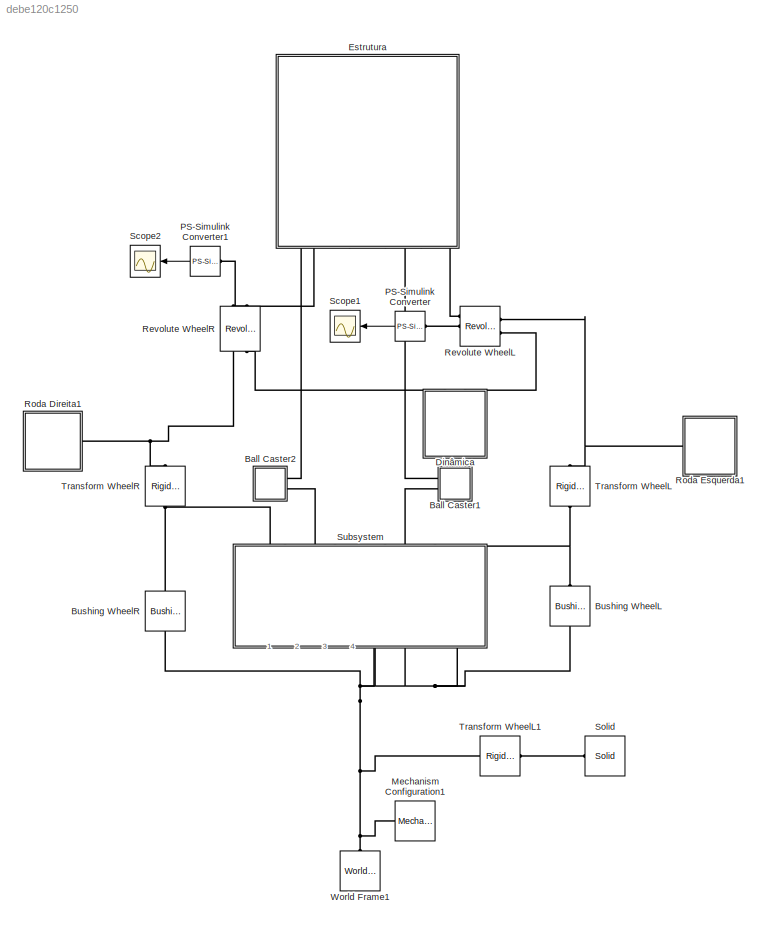
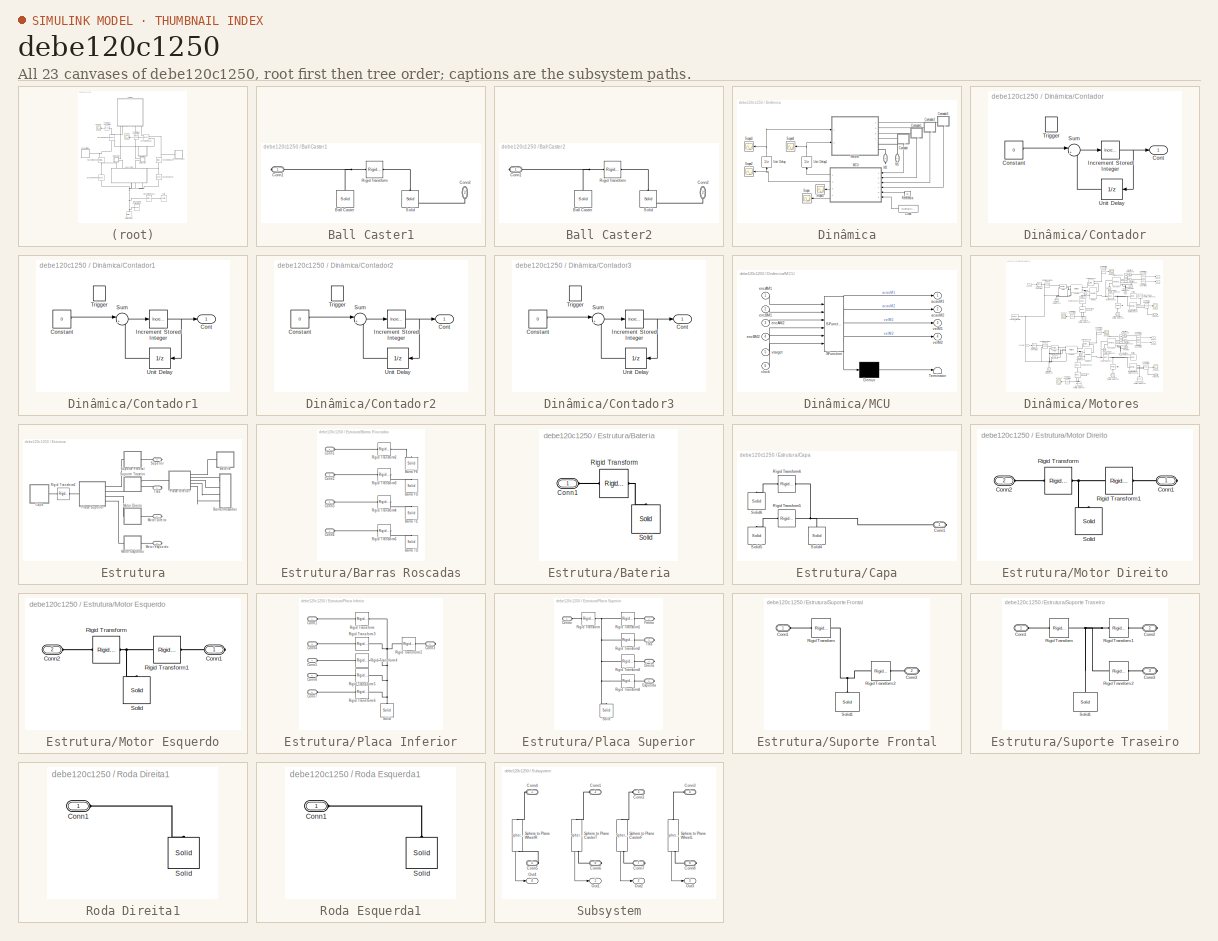
[diagram: thumbnail index - all 23 canvases of the model, root first then tree order]
MODEL slx_debe120c1250
KIND model
CONFIG AbsTol = 1e-5
CONFIG EnableMultiTasking = on
CONFIG FixedStep = 1e-3
CONFIG MaxStep = 0.1
CONFIG MinStep = auto
CONFIG RelTol = 1e-4
CONFIG SampleTimeConstraint = Unconstrained
CONFIG Solver = ode15s
CONFIG SolverName = ode15s
CONFIG StartFcn = tic;
CONFIG StartTime = 0.0
CONFIG StopFcn = Elapsed_Sim_Time = toc;\ndisp(['Elapsed Sim Time = ' num2str(Elapsed_Sim_Time)]);\n
CONFIG StopTime = 2
WORKSPACE source: MATLAB code (in-file)
WORKSPACE code: whl.rad = 0.025;
WORKSPACE code: whl.thickness = 0.005;
WORKSPACE code: axle.length = 0.2;
WORKSPACE code: axle.radius = 0.005;
WORKSPACE code: platform.radius = 0.15;
WORKSPACE code: platform.thickness = 0.005;
WORKSPACE code: platform.offset = -0.01;
WORKSPACE code: bumper.rad = platform.offset+whl.rad;
WORKSPACE code: table.length = 1;
WORKSPACE code: table.thickness = 0.01;
WORKSPACE code: tableWhl.contact.k = 1e3;
WORKSPACE code: tableWhl.contact.b = 1e2;
WORKSPACE code: steel.density = 8000; %kg/m^3
WORKSPACE code: start_pos.x = -0.2;
WORKSPACE code: start_pos.y = 0.2;
WORKSPACE l_whl_trq = [0 0 0 0.5 0 0 0 -0.5 1.0 0 0 0 -1.0 0.5 0 0 0 -0.5 -1.5 0 0 0 1.5].'*0.0005
WORKSPACE r_whl_trq = [0 0 0 2.0 0 0 0 -2.0 1.0 0 0 0 -1.0 1.0 0 0 0 -1.0 -1.5 0 0 0 1.5].'*0.0005
BLOCK [SubSystem] Ball Caster1
  Ports = [0, 0, 0, 0, 0, 0, 2]
  RequestExecContextInheritance = off
BLOCK [Reference] Ball Caster1/Ball Caster  REF=sm_lib/Body Elements/Solid
  Ports = [0, 0, 0, 0, 0, 0, 1]
  SourceBlock = sm_lib/Body Elements/Solid
  SourceProductBaseCode = MS
  SourceProductName = Simscape Multibody
  SourceType = Solid
BLOCK [PMIOPort] Ball Caster1/Conn1
  Side = Right
BLOCK [PMIOPort] Ball Caster1/Conn2
  Port = 2
  Side = Right
BLOCK [Reference] Ball Caster1/Rigid Transform  REF=sm_lib/Frames and
Transforms/Rigid
Transform
  Ports = [0, 0, 0, 0, 0, 1, 1]
  SourceBlock = sm_lib/Frames and\nTransforms/Rigid\nTransform
  SourceProductBaseCode = MS
  SourceProductName = Simscape Multibody
  SourceType = Rigid\nTransform
BLOCK [Reference] Ball Caster1/Solid  REF=sm_lib/Body Elements/Solid
  Ports = [0, 0, 0, 0, 0, 0, 1]
  SourceBlock = sm_lib/Body Elements/Solid
  SourceProductBaseCode = MS
  SourceProductName = Simscape Multibody
  SourceType = Solid
BLOCK [SubSystem] Ball Caster2
  Ports = [0, 0, 0, 0, 0, 0, 2]
  RequestExecContextInheritance = off
BLOCK [Reference] Ball Caster2/Ball Caster  REF=sm_lib/Body Elements/Solid
  Ports = [0, 0, 0, 0, 0, 0, 1]
  SourceBlock = sm_lib/Body Elements/Solid
  SourceProductBaseCode = MS
  SourceProductName = Simscape Multibody
  SourceType = Solid
BLOCK [PMIOPort] Ball Caster2/Conn1
  Side = Right
BLOCK [PMIOPort] Ball Caster2/Conn2
  Port = 2
  Side = Right
BLOCK [Reference] Ball Caster2/Rigid Transform  REF=sm_lib/Frames and
Transforms/Rigid
Transform
  Ports = [0, 0, 0, 0, 0, 1, 1]
  SourceBlock = sm_lib/Frames and\nTransforms/Rigid\nTransform
  SourceProductBaseCode = MS
  SourceProductName = Simscape Multibody
  SourceType = Rigid\nTransform
BLOCK [Reference] Ball Caster2/Solid  REF=sm_lib/Body Elements/Solid
  Ports = [0, 0, 0, 0, 0, 0, 1]
  SourceBlock = sm_lib/Body Elements/Solid
  SourceProductBaseCode = MS
  SourceProductName = Simscape Multibody
  SourceType = Solid
BLOCK [Reference] Bushing WheelL  REF=sm_lib/Joints/Bushing Joint
  Ports = [0, 0, 0, 0, 0, 1, 1]
  SourceBlock = sm_lib/Joints/Bushing Joint
  SourceProductBaseCode = MS
  SourceProductName = Simscape Multibody
  SourceType = Bushing Joint
BLOCK [Reference] Bushing WheelR  REF=sm_lib/Joints/Bushing Joint
  Ports = [0, 0, 0, 0, 0, 1, 1]
  SourceBlock = sm_lib/Joints/Bushing Joint
  SourceProductBaseCode = MS
  SourceProductName = Simscape Multibody
  SourceType = Bushing Joint
BLOCK [SubSystem] Dinâmica
  Ports = [0, 0, 0, 0, 0, 0, 2]
  RequestExecContextInheritance = off
BLOCK [DigitalClock] Dinâmica/Clock
  SampleTime = 1e-2
BLOCK [SubSystem] Dinâmica/Contador
  Ports = [0, 1, 0, 1]
  RequestExecContextInheritance = off
BLOCK [Constant] Dinâmica/Contador/Constant
  Value = 0
BLOCK [Outport] Dinâmica/Contador/Cont 
  IconDisplay = Port number
BLOCK [Reference] Dinâmica/Contador/Increment Stored Integer  REF=simulink/Additional Math
& Discrete/Additional Math:
Increment - Decrement/Increment
Stored Integer
  Ports = [1, 1]
  SourceBlock = simulink/Additional Math\n& Discrete/Additional Math:\nIncrement - Decrement/Increment\nStored Integer
  SourceProductBaseCode = SL
  SourceProductName = Simulink
  SourceType = Stored Integer Value Increment
BLOCK [Sum] Dinâmica/Contador/Sum
  IconShape = round
  InputSameDT = off
  Inputs = |++
  OutDataTypeStr = Inherit: Inherit via internal rule
  Ports = [2, 1]
  SaturateOnIntegerOverflow = off
BLOCK [TriggerPort] Dinâmica/Contador/Trigger
  PortDimensions = 1
  Ports = []
  StatesWhenEnabling = held
  TriggerType = either
  VariantControl = Variant
BLOCK [UnitDelay] Dinâmica/Contador/Unit Delay
  InputProcessing = Elements as channels (sample based)
  SampleTime = -1
BLOCK [SubSystem] Dinâmica/Contador1
  Ports = [0, 1, 0, 1]
  RequestExecContextInheritance = off
BLOCK [Constant] Dinâmica/Contador1/Constant
  Value = 0
BLOCK [Outport] Dinâmica/Contador1/Cont 
  IconDisplay = Port number
BLOCK [Reference] Dinâmica/Contador1/Increment Stored Integer  REF=simulink/Additional Math
& Discrete/Additional Math:
Increment - Decrement/Increment
Stored Integer
  Ports = [1, 1]
  SourceBlock = simulink/Additional Math\n& Discrete/Additional Math:\nIncrement - Decrement/Increment\nStored Integer
  SourceProductBaseCode = SL
  SourceProductName = Simulink
  SourceType = Stored Integer Value Increment
BLOCK [Sum] Dinâmica/Contador1/Sum
  IconShape = round
  InputSameDT = off
  Inputs = |++
  OutDataTypeStr = Inherit: Inherit via internal rule
  Ports = [2, 1]
  SaturateOnIntegerOverflow = off
BLOCK [TriggerPort] Dinâmica/Contador1/Trigger
  PortDimensions = 1
  Ports = []
  StatesWhenEnabling = held
  TriggerType = either
  VariantControl = Variant
BLOCK [UnitDelay] Dinâmica/Contador1/Unit Delay
  InputProcessing = Elements as channels (sample based)
  SampleTime = -1
BLOCK [SubSystem] Dinâmica/Contador2
  Ports = [0, 1, 0, 1]
  RequestExecContextInheritance = off
BLOCK [Constant] Dinâmica/Contador2/Constant
  Value = 0
BLOCK [Outport] Dinâmica/Contador2/Cont 
  IconDisplay = Port number
BLOCK [Reference] Dinâmica/Contador2/Increment Stored Integer  REF=simulink/Additional Math
& Discrete/Additional Math:
Increment - Decrement/Increment
Stored Integer
  Ports = [1, 1]
  SourceBlock = simulink/Additional Math\n& Discrete/Additional Math:\nIncrement - Decrement/Increment\nStored Integer
  SourceProductBaseCode = SL
  SourceProductName = Simulink
  SourceType = Stored Integer Value Increment
BLOCK [Sum] Dinâmica/Contador2/Sum
  IconShape = round
  InputSameDT = off
  Inputs = |++
  OutDataTypeStr = Inherit: Inherit via internal rule
  Ports = [2, 1]
  SaturateOnIntegerOverflow = off
BLOCK [TriggerPort] Dinâmica/Contador2/Trigger
  PortDimensions = 1
  Ports = []
  StatesWhenEnabling = held
  TriggerType = either
  VariantControl = Variant
BLOCK [UnitDelay] Dinâmica/Contador2/Unit Delay
  InputProcessing = Elements as channels (sample based)
  SampleTime = -1
BLOCK [SubSystem] Dinâmica/Contador3
  Ports = [0, 1, 0, 1]
  RequestExecContextInheritance = off
BLOCK [Constant] Dinâmica/Contador3/Constant
  Value = 0
BLOCK [Outport] Dinâmica/Contador3/Cont 
  IconDisplay = Port number
BLOCK [Reference] Dinâmica/Contador3/Increment Stored Integer  REF=simulink/Additional Math
& Discrete/Additional Math:
Increment - Decrement/Increment
Stored Integer
  Ports = [1, 1]
  SourceBlock = simulink/Additional Math\n& Discrete/Additional Math:\nIncrement - Decrement/Increment\nStored Integer
  SourceProductBaseCode = SL
  SourceProductName = Simulink
  SourceType = Stored Integer Value Increment
BLOCK [Sum] Dinâmica/Contador3/Sum
  IconShape = round
  InputSameDT = off
  Inputs = |++
  OutDataTypeStr = Inherit: Inherit via internal rule
  Ports = [2, 1]
  SaturateOnIntegerOverflow = off
BLOCK [TriggerPort] Dinâmica/Contador3/Trigger
  PortDimensions = 1
  Ports = []
  StatesWhenEnabling = held
  TriggerType = either
  VariantControl = Variant
BLOCK [UnitDelay] Dinâmica/Contador3/Unit Delay
  InputProcessing = Elements as channels (sample based)
  SampleTime = -1
BLOCK [PMIOPort] Dinâmica/M1
  Side = Right
BLOCK [PMIOPort] Dinâmica/M2
  Port = 2
  Side = Right
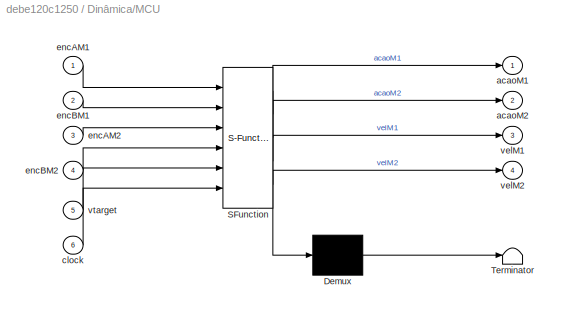
BLOCK [SubSystem] Dinâmica/MCU
  ErrorFcn = Stateflow.Translate.translate
  PermitHierarchicalResolution = ExplicitOnly
  Ports = [6, 4]
  RequestExecContextInheritance = off
  SFBlockType = MATLAB Function
  TreatAsAtomicUnit = on
BLOCK [Demux] Dinâmica/MCU/ Demux 
  Outputs = 1
  Ports = [1, 1]
BLOCK [S-Function] Dinâmica/MCU/ SFunction 
  EnableBusSupport = on
  FunctionName = sf_sfun
  PortCounts = [6 5]
  Ports = [6, 5]
  SFcnIsStateOwnerBlock = off
  SFunctionDeploymentMode = off
  Tag = Stateflow S-Function Sim_Integrada 2
BLOCK [Terminator] Dinâmica/MCU/ Terminator 
BLOCK [Outport] Dinâmica/MCU/acaoM1
  IconDisplay = Port number
BLOCK [Outport] Dinâmica/MCU/acaoM2
  IconDisplay = Port number
  Port = 2
BLOCK [Inport] Dinâmica/MCU/clock
  IconDisplay = Port number
  Port = 6
BLOCK [Inport] Dinâmica/MCU/encAM1
  IconDisplay = Port number
BLOCK [Inport] Dinâmica/MCU/encAM2
  IconDisplay = Port number
  Port = 3
BLOCK [Inport] Dinâmica/MCU/encBM1
  IconDisplay = Port number
  Port = 2
BLOCK [Inport] Dinâmica/MCU/encBM2
  IconDisplay = Port number
  Port = 4
BLOCK [Outport] Dinâmica/MCU/velM1
  IconDisplay = Port number
  Port = 3
BLOCK [Outport] Dinâmica/MCU/velM2
  IconDisplay = Port number
  Port = 4
BLOCK [Inport] Dinâmica/MCU/vtarget
  IconDisplay = Port number
  Port = 5
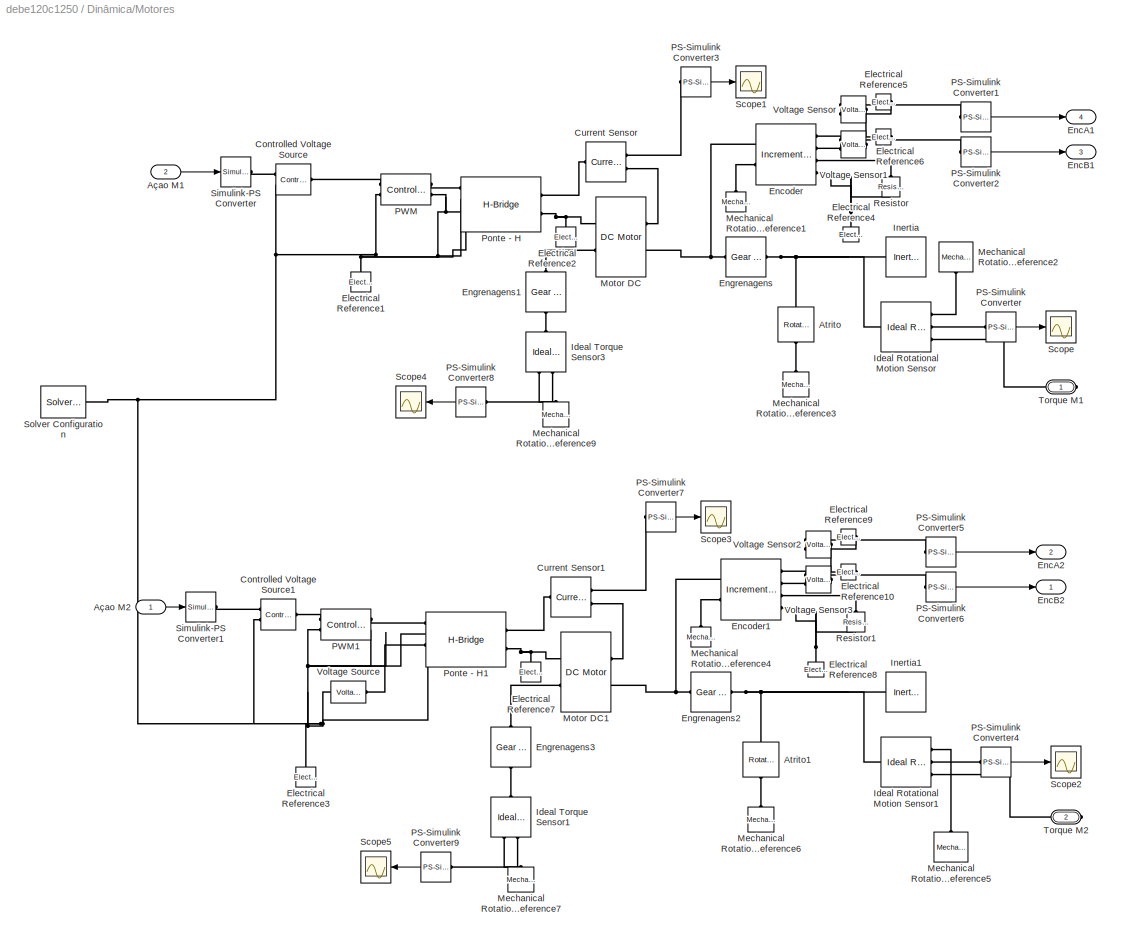
BLOCK [SubSystem] Dinâmica/Motores 
  Ports = [2, 4, 0, 0, 0, 0, 2]
  RequestExecContextInheritance = off
BLOCK [Reference] Dinâmica/Motores /Atrito  REF=fl_lib/Mechanical/Rotational Elements/Rotational Friction
  Ports = [0, 0, 0, 0, 0, 1, 1]
  SourceBlock = fl_lib/Mechanical/Rotational Elements/Rotational Friction
  SourceProductBaseCode = SS
  SourceProductName = Simscape
  SourceType = Rotational Friction
BLOCK [Reference] Dinâmica/Motores /Atrito1  REF=fl_lib/Mechanical/Rotational Elements/Rotational Friction
  Ports = [0, 0, 0, 0, 0, 1, 1]
  SourceBlock = fl_lib/Mechanical/Rotational Elements/Rotational Friction
  SourceProductBaseCode = SS
  SourceProductName = Simscape
  SourceType = Rotational Friction
BLOCK [Inport] Dinâmica/Motores /Açao M1
  IconDisplay = Port number
  Port = 2
BLOCK [Inport] Dinâmica/Motores /Açao M2
  IconDisplay = Port number
BLOCK [Reference] Dinâmica/Motores /Controlled Voltage Source  REF=fl_lib/Electrical/Electrical Sources/Controlled Voltage
Source
  Ports = [0, 0, 0, 0, 0, 1, 2]
  SourceBlock = fl_lib/Electrical/Electrical Sources/Controlled Voltage\nSource
  SourceProductBaseCode = SS
  SourceProductName = Simscape
  SourceType = Controlled Voltage\nSource
BLOCK [Reference] Dinâmica/Motores /Controlled Voltage Source1  REF=fl_lib/Electrical/Electrical Sources/Controlled Voltage
Source
  Ports = [0, 0, 0, 0, 0, 1, 2]
  SourceBlock = fl_lib/Electrical/Electrical Sources/Controlled Voltage\nSource
  SourceProductBaseCode = SS
  SourceProductName = Simscape
  SourceType = Controlled Voltage\nSource
BLOCK [Reference] Dinâmica/Motores /Current Sensor  REF=fl_lib/Electrical/Electrical Sensors/Current Sensor
  Ports = [0, 0, 0, 0, 0, 1, 2]
  SourceBlock = fl_lib/Electrical/Electrical Sensors/Current Sensor
  SourceProductBaseCode = SS
  SourceProductName = Simscape
  SourceType = Current Sensor
BLOCK [Reference] Dinâmica/Motores /Current Sensor1  REF=fl_lib/Electrical/Electrical Sensors/Current Sensor
  Ports = [0, 0, 0, 0, 0, 1, 2]
  SourceBlock = fl_lib/Electrical/Electrical Sensors/Current Sensor
  SourceProductBaseCode = SS
  SourceProductName = Simscape
  SourceType = Current Sensor
BLOCK [Reference] Dinâmica/Motores /Electrical Reference1  REF=fl_lib/Electrical/Electrical Elements/Electrical Reference
  Ports = [0, 0, 0, 0, 0, 1]
  SourceBlock = fl_lib/Electrical/Electrical Elements/Electrical Reference
  SourceProductBaseCode = SS
  SourceProductName = Simscape
  SourceType = Electrical Reference
BLOCK [Reference] Dinâmica/Motores /Electrical Reference10  REF=fl_lib/Electrical/Electrical Elements/Electrical Reference
  Ports = [0, 0, 0, 0, 0, 1]
  SourceBlock = fl_lib/Electrical/Electrical Elements/Electrical Reference
  SourceProductBaseCode = SS
  SourceProductName = Simscape
  SourceType = Electrical Reference
BLOCK [Reference] Dinâmica/Motores /Electrical Reference2  REF=fl_lib/Electrical/Electrical Elements/Electrical Reference
  Ports = [0, 0, 0, 0, 0, 1]
  SourceBlock = fl_lib/Electrical/Electrical Elements/Electrical Reference
  SourceProductBaseCode = SS
  SourceProductName = Simscape
  SourceType = Electrical Reference
BLOCK [Reference] Dinâmica/Motores /Electrical Reference3  REF=fl_lib/Electrical/Electrical Elements/Electrical Reference
  Ports = [0, 0, 0, 0, 0, 1]
  SourceBlock = fl_lib/Electrical/Electrical Elements/Electrical Reference
  SourceProductBaseCode = SS
  SourceProductName = Simscape
  SourceType = Electrical Reference
BLOCK [Reference] Dinâmica/Motores /Electrical Reference4  REF=fl_lib/Electrical/Electrical Elements/Electrical Reference
  Ports = [0, 0, 0, 0, 0, 1]
  SourceBlock = fl_lib/Electrical/Electrical Elements/Electrical Reference
  SourceProductBaseCode = SS
  SourceProductName = Simscape
  SourceType = Electrical Reference
BLOCK [Reference] Dinâmica/Motores /Electrical Reference5  REF=fl_lib/Electrical/Electrical Elements/Electrical Reference
  Ports = [0, 0, 0, 0, 0, 1]
  SourceBlock = fl_lib/Electrical/Electrical Elements/Electrical Reference
  SourceProductBaseCode = SS
  SourceProductName = Simscape
  SourceType = Electrical Reference
BLOCK [Reference] Dinâmica/Motores /Electrical Reference6  REF=fl_lib/Electrical/Electrical Elements/Electrical Reference
  Ports = [0, 0, 0, 0, 0, 1]
  SourceBlock = fl_lib/Electrical/Electrical Elements/Electrical Reference
  SourceProductBaseCode = SS
  SourceProductName = Simscape
  SourceType = Electrical Reference
BLOCK [Reference] Dinâmica/Motores /Electrical Reference7  REF=fl_lib/Electrical/Electrical Elements/Electrical Reference
  Ports = [0, 0, 0, 0, 0, 1]
  SourceBlock = fl_lib/Electrical/Electrical Elements/Electrical Reference
  SourceProductBaseCode = SS
  SourceProductName = Simscape
  SourceType = Electrical Reference
BLOCK [Reference] Dinâmica/Motores /Electrical Reference8  REF=fl_lib/Electrical/Electrical Elements/Electrical Reference
  Ports = [0, 0, 0, 0, 0, 1]
  SourceBlock = fl_lib/Electrical/Electrical Elements/Electrical Reference
  SourceProductBaseCode = SS
  SourceProductName = Simscape
  SourceType = Electrical Reference
BLOCK [Reference] Dinâmica/Motores /Electrical Reference9  REF=fl_lib/Electrical/Electrical Elements/Electrical Reference
  Ports = [0, 0, 0, 0, 0, 1]
  SourceBlock = fl_lib/Electrical/Electrical Elements/Electrical Reference
  SourceProductBaseCode = SS
  SourceProductName = Simscape
  SourceType = Electrical Reference
BLOCK [Outport] Dinâmica/Motores /EncA1
  IconDisplay = Port number
  Port = 4
BLOCK [Outport] Dinâmica/Motores /EncA2
  IconDisplay = Port number
  Port = 2
BLOCK [Outport] Dinâmica/Motores /EncB1
  IconDisplay = Port number
  Port = 3
BLOCK [Outport] Dinâmica/Motores /EncB2
  IconDisplay = Port number
BLOCK [Reference] Dinâmica/Motores /Encoder  REF=elec_lib/Sensors/Incremental Shaft
Encoder
  Ports = [0, 0, 0, 0, 0, 2, 4]
  SourceBlock = elec_lib/Sensors/Incremental Shaft\nEncoder
  SourceProductBaseCode = SN
  SourceProductName = Simscape Electronics
  SourceType = Incremental Shaft\nEncoder
BLOCK [Reference] Dinâmica/Motores /Encoder1  REF=elec_lib/Sensors/Incremental Shaft
Encoder
  Ports = [0, 0, 0, 0, 0, 2, 4]
  SourceBlock = elec_lib/Sensors/Incremental Shaft\nEncoder
  SourceProductBaseCode = SN
  SourceProductName = Simscape Electronics
  SourceType = Incremental Shaft\nEncoder
BLOCK [Reference] Dinâmica/Motores /Engrenagens  REF=fl_lib/Mechanical/Mechanisms/Gear Box
  Ports = [0, 0, 0, 0, 0, 1, 1]
  SourceBlock = fl_lib/Mechanical/Mechanisms/Gear Box
  SourceProductBaseCode = SS
  SourceProductName = Simscape
  SourceType = Gear Box
BLOCK [Reference] Dinâmica/Motores /Engrenagens1  REF=fl_lib/Mechanical/Mechanisms/Gear Box
  Ports = [0, 0, 0, 0, 0, 1, 1]
  SourceBlock = fl_lib/Mechanical/Mechanisms/Gear Box
  SourceProductBaseCode = SS
  SourceProductName = Simscape
  SourceType = Gear Box
BLOCK [Reference] Dinâmica/Motores /Engrenagens2  REF=fl_lib/Mechanical/Mechanisms/Gear Box
  Ports = [0, 0, 0, 0, 0, 1, 1]
  SourceBlock = fl_lib/Mechanical/Mechanisms/Gear Box
  SourceProductBaseCode = SS
  SourceProductName = Simscape
  SourceType = Gear Box
BLOCK [Reference] Dinâmica/Motores /Engrenagens3  REF=fl_lib/Mechanical/Mechanisms/Gear Box
  Ports = [0, 0, 0, 0, 0, 1, 1]
  SourceBlock = fl_lib/Mechanical/Mechanisms/Gear Box
  SourceProductBaseCode = SS
  SourceProductName = Simscape
  SourceType = Gear Box
BLOCK [Reference] Dinâmica/Motores /Ideal Rotational Motion Sensor  REF=fl_lib/Mechanical/Mechanical Sensors/Ideal Rotational
Motion Sensor
  Ports = [0, 0, 0, 0, 0, 1, 3]
  SourceBlock = fl_lib/Mechanical/Mechanical Sensors/Ideal Rotational\nMotion Sensor
  SourceProductBaseCode = SS
  SourceProductName = Simscape
  SourceType = Ideal Rotational\nMotion Sensor
BLOCK [Reference] Dinâmica/Motores /Ideal Rotational Motion Sensor1  REF=fl_lib/Mechanical/Mechanical Sensors/Ideal Rotational
Motion Sensor
  Ports = [0, 0, 0, 0, 0, 1, 3]
  SourceBlock = fl_lib/Mechanical/Mechanical Sensors/Ideal Rotational\nMotion Sensor
  SourceProductBaseCode = SS
  SourceProductName = Simscape
  SourceType = Ideal Rotational\nMotion Sensor
BLOCK [Reference] Dinâmica/Motores /Ideal Torque Sensor1  REF=fl_lib/Mechanical/Mechanical Sensors/Ideal Torque Sensor
  Ports = [0, 0, 0, 0, 0, 1, 2]
  SourceBlock = fl_lib/Mechanical/Mechanical Sensors/Ideal Torque Sensor
  SourceProductBaseCode = SS
  SourceProductName = Simscape
  SourceType = Ideal Torque Sensor
BLOCK [Reference] Dinâmica/Motores /Ideal Torque Sensor3  REF=fl_lib/Mechanical/Mechanical Sensors/Ideal Torque Sensor
  Ports = [0, 0, 0, 0, 0, 1, 2]
  SourceBlock = fl_lib/Mechanical/Mechanical Sensors/Ideal Torque Sensor
  SourceProductBaseCode = SS
  SourceProductName = Simscape
  SourceType = Ideal Torque Sensor
BLOCK [Reference] Dinâmica/Motores /Inertia  REF=fl_lib/Mechanical/Rotational Elements/Inertia
  Ports = [0, 0, 0, 0, 0, 1]
  SourceBlock = fl_lib/Mechanical/Rotational Elements/Inertia
  SourceProductBaseCode = SS
  SourceProductName = Simscape
  SourceType = Inertia
BLOCK [Reference] Dinâmica/Motores /Inertia1  REF=fl_lib/Mechanical/Rotational Elements/Inertia
  Ports = [0, 0, 0, 0, 0, 1]
  SourceBlock = fl_lib/Mechanical/Rotational Elements/Inertia
  SourceProductBaseCode = SS
  SourceProductName = Simscape
  SourceType = Inertia
BLOCK [Reference] Dinâmica/Motores /Mechanical Rotational Reference1  REF=fl_lib/Mechanical/Rotational Elements/Mechanical
Rotational Reference
  Ports = [0, 0, 0, 0, 0, 1]
  SourceBlock = fl_lib/Mechanical/Rotational Elements/Mechanical\nRotational Reference
  SourceProductBaseCode = SS
  SourceProductName = Simscape
  SourceType = Mechanical\nRotational Reference
BLOCK [Reference] Dinâmica/Motores /Mechanical Rotational Reference2  REF=fl_lib/Mechanical/Rotational Elements/Mechanical
Rotational Reference
  Ports = [0, 0, 0, 0, 0, 1]
  SourceBlock = fl_lib/Mechanical/Rotational Elements/Mechanical\nRotational Reference
  SourceProductBaseCode = SS
  SourceProductName = Simscape
  SourceType = Mechanical\nRotational Reference
BLOCK [Reference] Dinâmica/Motores /Mechanical Rotational Reference3  REF=fl_lib/Mechanical/Rotational Elements/Mechanical
Rotational Reference
  Ports = [0, 0, 0, 0, 0, 1]
  SourceBlock = fl_lib/Mechanical/Rotational Elements/Mechanical\nRotational Reference
  SourceProductBaseCode = SS
  SourceProductName = Simscape
  SourceType = Mechanical\nRotational Reference
BLOCK [Reference] Dinâmica/Motores /Mechanical Rotational Reference4  REF=fl_lib/Mechanical/Rotational Elements/Mechanical
Rotational Reference
  Ports = [0, 0, 0, 0, 0, 1]
  SourceBlock = fl_lib/Mechanical/Rotational Elements/Mechanical\nRotational Reference
  SourceProductBaseCode = SS
  SourceProductName = Simscape
  SourceType = Mechanical\nRotational Reference
BLOCK [Reference] Dinâmica/Motores /Mechanical Rotational Reference5  REF=fl_lib/Mechanical/Rotational Elements/Mechanical
Rotational Reference
  Ports = [0, 0, 0, 0, 0, 1]
  SourceBlock = fl_lib/Mechanical/Rotational Elements/Mechanical\nRotational Reference
  SourceProductBaseCode = SS
  SourceProductName = Simscape
  SourceType = Mechanical\nRotational Reference
BLOCK [Reference] Dinâmica/Motores /Mechanical Rotational Reference6  REF=fl_lib/Mechanical/Rotational Elements/Mechanical
Rotational Reference
  Ports = [0, 0, 0, 0, 0, 1]
  SourceBlock = fl_lib/Mechanical/Rotational Elements/Mechanical\nRotational Reference
  SourceProductBaseCode = SS
  SourceProductName = Simscape
  SourceType = Mechanical\nRotational Reference
BLOCK [Reference] Dinâmica/Motores /Mechanical Rotational Reference7  REF=fl_lib/Mechanical/Rotational Elements/Mechanical
Rotational Reference
  Ports = [0, 0, 0, 0, 0, 1]
  SourceBlock = fl_lib/Mechanical/Rotational Elements/Mechanical\nRotational Reference
  SourceProductBaseCode = SS
  SourceProductName = Simscape
  SourceType = Mechanical\nRotational Reference
BLOCK [Reference] Dinâmica/Motores /Mechanical Rotational Reference9  REF=fl_lib/Mechanical/Rotational Elements/Mechanical
Rotational Reference
  Ports = [0, 0, 0, 0, 0, 1]
  SourceBlock = fl_lib/Mechanical/Rotational Elements/Mechanical\nRotational Reference
  SourceProductBaseCode = SS
  SourceProductName = Simscape
  SourceType = Mechanical\nRotational Reference
BLOCK [Reference] Dinâmica/Motores /Motor DC  REF=elec_lib/Actuators & Drivers/Rotational Actuators/DC Motor
  Ports = [0, 0, 0, 0, 0, 2, 2]
  SourceBlock = elec_lib/Actuators & Drivers/Rotational Actuators/DC Motor
  SourceProductBaseCode = SN
  SourceProductName = Simscape Electronics
  SourceType = DC Motor
BLOCK [Reference] Dinâmica/Motores /Motor DC1  REF=elec_lib/Actuators & Drivers/Rotational Actuators/DC Motor
  Ports = [0, 0, 0, 0, 0, 2, 2]
  SourceBlock = elec_lib/Actuators & Drivers/Rotational Actuators/DC Motor
  SourceProductBaseCode = SN
  SourceProductName = Simscape Electronics
  SourceType = DC Motor
BLOCK [Reference] Dinâmica/Motores /PS-Simulink Converter  REF=nesl_utility/PS-Simulink
Converter
  Ports = [0, 1, 0, 0, 0, 1]
  SourceBlock = nesl_utility/PS-Simulink\nConverter
  SourceProductBaseCode = SS
  SourceProductName = Simscape
  SourceType = PS-Simulink\nConverter
BLOCK [Reference] Dinâmica/Motores /PS-Simulink Converter1  REF=nesl_utility/PS-Simulink
Converter
  Ports = [0, 1, 0, 0, 0, 1]
  SourceBlock = nesl_utility/PS-Simulink\nConverter
  SourceProductBaseCode = SS
  SourceProductName = Simscape
  SourceType = PS-Simulink\nConverter
BLOCK [Reference] Dinâmica/Motores /PS-Simulink Converter2  REF=nesl_utility/PS-Simulink
Converter
  Ports = [0, 1, 0, 0, 0, 1]
  SourceBlock = nesl_utility/PS-Simulink\nConverter
  SourceProductBaseCode = SS
  SourceProductName = Simscape
  SourceType = PS-Simulink\nConverter
BLOCK [Reference] Dinâmica/Motores /PS-Simulink Converter3  REF=nesl_utility/PS-Simulink
Converter
  Ports = [0, 1, 0, 0, 0, 1]
  SourceBlock = nesl_utility/PS-Simulink\nConverter
  SourceProductBaseCode = SS
  SourceProductName = Simscape
  SourceType = PS-Simulink\nConverter
BLOCK [Reference] Dinâmica/Motores /PS-Simulink Converter4  REF=nesl_utility/PS-Simulink
Converter
  Ports = [0, 1, 0, 0, 0, 1]
  SourceBlock = nesl_utility/PS-Simulink\nConverter
  SourceProductBaseCode = SS
  SourceProductName = Simscape
  SourceType = PS-Simulink\nConverter
BLOCK [Reference] Dinâmica/Motores /PS-Simulink Converter5  REF=nesl_utility/PS-Simulink
Converter
  Ports = [0, 1, 0, 0, 0, 1]
  SourceBlock = nesl_utility/PS-Simulink\nConverter
  SourceProductBaseCode = SS
  SourceProductName = Simscape
  SourceType = PS-Simulink\nConverter
BLOCK [Reference] Dinâmica/Motores /PS-Simulink Converter6  REF=nesl_utility/PS-Simulink
Converter
  Ports = [0, 1, 0, 0, 0, 1]
  SourceBlock = nesl_utility/PS-Simulink\nConverter
  SourceProductBaseCode = SS
  SourceProductName = Simscape
  SourceType = PS-Simulink\nConverter
BLOCK [Reference] Dinâmica/Motores /PS-Simulink Converter7  REF=nesl_utility/PS-Simulink
Converter
  Ports = [0, 1, 0, 0, 0, 1]
  SourceBlock = nesl_utility/PS-Simulink\nConverter
  SourceProductBaseCode = SS
  SourceProductName = Simscape
  SourceType = PS-Simulink\nConverter
BLOCK [Reference] Dinâmica/Motores /PS-Simulink Converter8  REF=nesl_utility/PS-Simulink
Converter
  Ports = [0, 1, 0, 0, 0, 1]
  SourceBlock = nesl_utility/PS-Simulink\nConverter
  SourceProductBaseCode = SS
  SourceProductName = Simscape
  SourceType = PS-Simulink\nConverter
BLOCK [Reference] Dinâmica/Motores /PS-Simulink Converter9  REF=nesl_utility/PS-Simulink
Converter
  Ports = [0, 1, 0, 0, 0, 1]
  SourceBlock = nesl_utility/PS-Simulink\nConverter
  SourceProductBaseCode = SS
  SourceProductName = Simscape
  SourceType = PS-Simulink\nConverter
BLOCK [Reference] Dinâmica/Motores /PWM  REF=elec_lib/Actuators & Drivers/Drivers/Controlled PWM
Voltage
  Ports = [0, 0, 0, 0, 0, 2, 2]
  SourceBlock = elec_lib/Actuators & Drivers/Drivers/Controlled PWM\nVoltage
  SourceProductBaseCode = SN
  SourceProductName = Simscape Electronics
  SourceType = Controlled PWM\nVoltage
BLOCK [Reference] Dinâmica/Motores /PWM1  REF=elec_lib/Actuators & Drivers/Drivers/Controlled PWM
Voltage
  Ports = [0, 0, 0, 0, 0, 2, 2]
  SourceBlock = elec_lib/Actuators & Drivers/Drivers/Controlled PWM\nVoltage
  SourceProductBaseCode = SN
  SourceProductName = Simscape Electronics
  SourceType = Controlled PWM\nVoltage
BLOCK [Reference] Dinâmica/Motores /Ponte - H  REF=elec_lib/Actuators & Drivers/Drivers/H-Bridge
  Ports = [0, 0, 0, 0, 0, 4, 2]
  SourceBlock = elec_lib/Actuators & Drivers/Drivers/H-Bridge
  SourceProductBaseCode = SN
  SourceProductName = Simscape Electronics
  SourceType = H-Bridge
BLOCK [Reference] Dinâmica/Motores /Ponte - H1  REF=elec_lib/Actuators & Drivers/Drivers/H-Bridge
  Ports = [0, 0, 0, 0, 0, 4, 2]
  SourceBlock = elec_lib/Actuators & Drivers/Drivers/H-Bridge
  SourceProductBaseCode = SN
  SourceProductName = Simscape Electronics
  SourceType = H-Bridge
BLOCK [Reference] Dinâmica/Motores /Resistor  REF=elec_lib/Passive Devices/Resistor
  Ports = [0, 0, 0, 0, 0, 1, 1]
  SourceBlock = elec_lib/Passive Devices/Resistor
  SourceProductBaseCode = SN
  SourceProductName = Simscape Electronics
  SourceType = Resistor
BLOCK [Reference] Dinâmica/Motores /Resistor1  REF=elec_lib/Passive Devices/Resistor
  Ports = [0, 0, 0, 0, 0, 1, 1]
  SourceBlock = elec_lib/Passive Devices/Resistor
  SourceProductBaseCode = SN
  SourceProductName = Simscape Electronics
  SourceType = Resistor
BLOCK [Scope] Dinâmica/Motores /Scope
  Floating = off
  NumInputPorts = 1
  Ports = [1]
  ScopeSpecificationString = Simulink.scopes.TimeScopeBlockCfg('CurrentConfiguration', extmgr.ConfigurationSet(extmgr.Configuration('Core','General UI',true),extmgr.Configuration('Core','Source UI',true),extmgr.Configuration('Sources','WiredSimulink',true,'DataLoggingVariableName','ScopeData1'),extmgr.Configuration('Visuals','Time Domain',true,'SerializedDisplays',{struct('MinYLimReal','-3.87884','MaxYLimReal','34.90953','YLa...<+1412ch>
BLOCK [Scope] Dinâmica/Motores /Scope1
  Floating = off
  NumInputPorts = 1
  Ports = [1]
  ScopeSpecificationString = Simulink.scopes.TimeScopeBlockCfg('CurrentConfiguration', extmgr.ConfigurationSet(extmgr.Configuration('Core','General UI',true),extmgr.Configuration('Core','Source UI',true),extmgr.Configuration('Sources','WiredSimulink',true,'DataLoggingSaveFormat','Array','DataLoggingDecimation','1','DataLoggingVariableName','ScopeData2'),extmgr.Configuration('Visuals','Time Domain',true,'SerializedDisplays',{s...<+1690ch>
BLOCK [Scope] Dinâmica/Motores /Scope2
  Floating = off
  NumInputPorts = 1
  Ports = [1]
  ScopeSpecificationString = Simulink.scopes.TimeScopeBlockCfg('CurrentConfiguration', extmgr.ConfigurationSet(extmgr.Configuration('Core','General UI',true),extmgr.Configuration('Core','Source UI',true),extmgr.Configuration('Sources','WiredSimulink',true,'DataLoggingVariableName','ScopeData4'),extmgr.Configuration('Visuals','Time Domain',true,'SerializedDisplays',{struct('MinYLimReal','-4.50172','MaxYLimReal','40.5155','YLab...<+1408ch>
BLOCK [Scope] Dinâmica/Motores /Scope3
  Floating = off
  NumInputPorts = 1
  Ports = [1]
  ScopeSpecificationString = Simulink.scopes.TimeScopeBlockCfg('CurrentConfiguration', extmgr.ConfigurationSet(extmgr.Configuration('Core','General UI',true),extmgr.Configuration('Core','Source UI',true),extmgr.Configuration('Sources','WiredSimulink',true,'DataLoggingSaveFormat','Array','DataLoggingDecimation','1','DataLoggingVariableName','ScopeData5'),extmgr.Configuration('Visuals','Time Domain',true,'SerializedDisplays',{s...<+1690ch>
BLOCK [Scope] Dinâmica/Motores /Scope4
  Floating = off
  NumInputPorts = 1
  Ports = [1]
  ScopeSpecificationString = Simulink.scopes.TimeScopeBlockCfg('CurrentConfiguration', extmgr.ConfigurationSet(extmgr.Configuration('Core','General UI',true),extmgr.Configuration('Core','Source UI',true),extmgr.Configuration('Sources','WiredSimulink',true,'DataLoggingVariableName','ScopeData3'),extmgr.Configuration('Visuals','Time Domain',true,'SerializedDisplays',{struct('MinYLimReal','-0.05029','MaxYLimReal','0.00559','YLab...<+1454ch>
BLOCK [Scope] Dinâmica/Motores /Scope5
  Floating = off
  NumInputPorts = 1
  Ports = [1]
  ScopeSpecificationString = Simulink.scopes.TimeScopeBlockCfg('CurrentConfiguration', extmgr.ConfigurationSet(extmgr.Configuration('Core','General UI',true),extmgr.Configuration('Core','Source UI',true),extmgr.Configuration('Sources','WiredSimulink',true,'DataLoggingVariableName','ScopeData6'),extmgr.Configuration('Visuals','Time Domain',true,'SerializedDisplays',{struct('MinYLimReal','-0.05029','MaxYLimReal','0.00559','YLab...<+1454ch>
BLOCK [Reference] Dinâmica/Motores /Simulink-PS Converter  REF=nesl_utility/Simulink-PS
Converter
  Ports = [1, 0, 0, 0, 0, 0, 1]
  SourceBlock = nesl_utility/Simulink-PS\nConverter
  SourceProductBaseCode = SS
  SourceProductName = Simscape
  SourceType = Simulink-PS\nConverter
BLOCK [Reference] Dinâmica/Motores /Simulink-PS Converter1  REF=nesl_utility/Simulink-PS
Converter
  Ports = [1, 0, 0, 0, 0, 0, 1]
  SourceBlock = nesl_utility/Simulink-PS\nConverter
  SourceProductBaseCode = SS
  SourceProductName = Simscape
  SourceType = Simulink-PS\nConverter
BLOCK [Reference] Dinâmica/Motores /Solver Configuration  REF=nesl_utility/Solver
Configuration
  Ports = [0, 0, 0, 0, 0, 0, 1]
  SourceBlock = nesl_utility/Solver\nConfiguration
  SourceProductBaseCode = SS
  SourceProductName = Simscape
  SourceType = Solver\nConfiguration
BLOCK [PMIOPort] Dinâmica/Motores /Torque M1
  Side = Right
BLOCK [PMIOPort] Dinâmica/Motores /Torque M2
  Port = 2
  Side = Right
BLOCK [Reference] Dinâmica/Motores /Voltage Sensor  REF=fl_lib/Electrical/Electrical Sensors/Voltage Sensor
  Ports = [0, 0, 0, 0, 0, 1, 2]
  SourceBlock = fl_lib/Electrical/Electrical Sensors/Voltage Sensor
  SourceProductBaseCode = SS
  SourceProductName = Simscape
  SourceType = Voltage Sensor
BLOCK [Reference] Dinâmica/Motores /Voltage Sensor1  REF=fl_lib/Electrical/Electrical Sensors/Voltage Sensor
  Ports = [0, 0, 0, 0, 0, 1, 2]
  SourceBlock = fl_lib/Electrical/Electrical Sensors/Voltage Sensor
  SourceProductBaseCode = SS
  SourceProductName = Simscape
  SourceType = Voltage Sensor
BLOCK [Reference] Dinâmica/Motores /Voltage Sensor2  REF=fl_lib/Electrical/Electrical Sensors/Voltage Sensor
  Ports = [0, 0, 0, 0, 0, 1, 2]
  SourceBlock = fl_lib/Electrical/Electrical Sensors/Voltage Sensor
  SourceProductBaseCode = SS
  SourceProductName = Simscape
  SourceType = Voltage Sensor
BLOCK [Reference] Dinâmica/Motores /Voltage Sensor3  REF=fl_lib/Electrical/Electrical Sensors/Voltage Sensor
  Ports = [0, 0, 0, 0, 0, 1, 2]
  SourceBlock = fl_lib/Electrical/Electrical Sensors/Voltage Sensor
  SourceProductBaseCode = SS
  SourceProductName = Simscape
  SourceType = Voltage Sensor
BLOCK [Reference] Dinâmica/Motores /Voltage Source  REF=elec_lib/Sources/Voltage Source
  Ports = [0, 0, 0, 0, 0, 1, 1]
  SourceBlock = elec_lib/Sources/Voltage Source
  SourceProductBaseCode = SN
  SourceProductName = Simscape Electronics
  SourceType = Voltage Source
BLOCK [Constant] Dinâmica/Referência
  Value = 26
BLOCK [Scope] Dinâmica/Scope
  Floating = off
  NumInputPorts = 1
  Ports = [1]
  ScopeSpecificationString = Simulink.scopes.TimeScopeBlockCfg('CurrentConfiguration', extmgr.ConfigurationSet(extmgr.Configuration('Core','General UI',true),extmgr.Configuration('Core','Source UI',true),extmgr.Configuration('Sources','WiredSimulink',true,'DataLoggingVariableName','ScopeData1'),extmgr.Configuration('Visuals','Time Domain',true,'SerializedDisplays',{struct('MinYLimReal','-3.86154','MaxYLimReal','34.75387','YLa...<+1471ch>
BLOCK [Scope] Dinâmica/Scope1
  Floating = off
  NumInputPorts = 1
  Ports = [1]
  ScopeSpecificationString = Simulink.scopes.TimeScopeBlockCfg('CurrentConfiguration', extmgr.ConfigurationSet(extmgr.Configuration('Core','General UI',true),extmgr.Configuration('Core','Source UI',true),extmgr.Configuration('Sources','WiredSimulink',true,'DataLoggingVariableName','ScopeData2'),extmgr.Configuration('Visuals','Time Domain',true,'SerializedDisplays',{struct('MinYLimReal','-3.63247','MaxYLimReal','32.6922','YLab...<+1417ch>
BLOCK [Scope] Dinâmica/Scope2
  Floating = off
  NumInputPorts = 1
  Ports = [1]
  ScopeSpecificationString = Simulink.scopes.TimeScopeBlockCfg('CurrentConfiguration', extmgr.ConfigurationSet(extmgr.Configuration('Core','General UI',true),extmgr.Configuration('Core','Source UI',true),extmgr.Configuration('Sources','WiredSimulink',true,'DataLoggingVariableName','ScopeData3'),extmgr.Configuration('Visuals','Time Domain',true,'SerializedDisplays',{struct('MinYLimReal','-400.00000','MaxYLimReal','3600.00000',...<+1387ch>
BLOCK [Scope] Dinâmica/Scope3
  Floating = off
  NumInputPorts = 1
  Ports = [1]
  ScopeSpecificationString = Simulink.scopes.TimeScopeBlockCfg('CurrentConfiguration', extmgr.ConfigurationSet(extmgr.Configuration('Core','General UI',true),extmgr.Configuration('Core','Source UI',true),extmgr.Configuration('Sources','WiredSimulink',true,'DataLoggingVariableName','ScopeData4'),extmgr.Configuration('Visuals','Time Domain',true,'SerializedDisplays',{struct('MinYLimReal','-400.00000','MaxYLimReal','3600.00000',...<+1387ch>
BLOCK [Scope] Dinâmica/Scope4
  Floating = off
  NumInputPorts = 1
  Ports = [1]
  ScopeSpecificationString = Simulink.scopes.TimeScopeBlockCfg('CurrentConfiguration', extmgr.ConfigurationSet(extmgr.Configuration('Core','General UI',true),extmgr.Configuration('Core','Source UI',true),extmgr.Configuration('Sources','WiredSimulink',true,'DataLoggingVariableName','ScopeData5'),extmgr.Configuration('Visuals','Time Domain',true,'SerializedDisplays',{struct('MinYLimReal','-400.00000','MaxYLimReal','3600.00000',...<+1434ch>
BLOCK [UnitDelay] Dinâmica/Unit Delay
  InputProcessing = Elements as channels (sample based)
  SampleTime = -1
BLOCK [UnitDelay] Dinâmica/Unit Delay1
  InputProcessing = Elements as channels (sample based)
  SampleTime = -1
BLOCK [SubSystem] Estrutura
  Ports = [0, 0, 0, 0, 0, 0, 4]
  RequestExecContextInheritance = off
BLOCK [SubSystem] Estrutura/Barras Roscadas
  Ports = [0, 0, 0, 0, 0, 4]
  RequestExecContextInheritance = off
BLOCK [Reference] Estrutura/Barras Roscadas/Barra FD  REF=sm_lib/Body Elements/Solid
  Ports = [0, 0, 0, 0, 0, 0, 1]
  SourceBlock = sm_lib/Body Elements/Solid
  SourceProductBaseCode = MS
  SourceProductName = Simscape Multibody
  SourceType = Solid
BLOCK [Reference] Estrutura/Barras Roscadas/Barra FE  REF=sm_lib/Body Elements/Solid
  Ports = [0, 0, 0, 0, 0, 0, 1]
  SourceBlock = sm_lib/Body Elements/Solid
  SourceProductBaseCode = MS
  SourceProductName = Simscape Multibody
  SourceType = Solid
BLOCK [Reference] Estrutura/Barras Roscadas/Barra TD  REF=sm_lib/Body Elements/Solid
  Ports = [0, 0, 0, 0, 0, 0, 1]
  SourceBlock = sm_lib/Body Elements/Solid
  SourceProductBaseCode = MS
  SourceProductName = Simscape Multibody
  SourceType = Solid
BLOCK [Reference] Estrutura/Barras Roscadas/Barra TE  REF=sm_lib/Body Elements/Solid
  Ports = [0, 0, 0, 0, 0, 0, 1]
  SourceBlock = sm_lib/Body Elements/Solid
  SourceProductBaseCode = MS
  SourceProductName = Simscape Multibody
  SourceType = Solid
BLOCK [PMIOPort] Estrutura/Barras Roscadas/Conn1
  Side = Left
BLOCK [PMIOPort] Estrutura/Barras Roscadas/Conn2
  Port = 2
  Side = Left
BLOCK [PMIOPort] Estrutura/Barras Roscadas/Conn3
  Port = 3
  Side = Left
BLOCK [PMIOPort] Estrutura/Barras Roscadas/Conn4
  Port = 4
  Side = Left
BLOCK [Reference] Estrutura/Barras Roscadas/Rigid Transform2  REF=sm_lib/Frames and
Transforms/Rigid
Transform
  Ports = [0, 0, 0, 0, 0, 1, 1]
  SourceBlock = sm_lib/Frames and\nTransforms/Rigid\nTransform
  SourceProductBaseCode = MS
  SourceProductName = Simscape Multibody
  SourceType = Rigid\nTransform
BLOCK [Reference] Estrutura/Barras Roscadas/Rigid Transform3  REF=sm_lib/Frames and
Transforms/Rigid
Transform
  Ports = [0, 0, 0, 0, 0, 1, 1]
  SourceBlock = sm_lib/Frames and\nTransforms/Rigid\nTransform
  SourceProductBaseCode = MS
  SourceProductName = Simscape Multibody
  SourceType = Rigid\nTransform
BLOCK [Reference] Estrutura/Barras Roscadas/Rigid Transform4  REF=sm_lib/Frames and
Transforms/Rigid
Transform
  Ports = [0, 0, 0, 0, 0, 1, 1]
  SourceBlock = sm_lib/Frames and\nTransforms/Rigid\nTransform
  SourceProductBaseCode = MS
  SourceProductName = Simscape Multibody
  SourceType = Rigid\nTransform
BLOCK [Reference] Estrutura/Barras Roscadas/Rigid Transform5  REF=sm_lib/Frames and
Transforms/Rigid
Transform
  Ports = [0, 0, 0, 0, 0, 1, 1]
  SourceBlock = sm_lib/Frames and\nTransforms/Rigid\nTransform
  SourceProductBaseCode = MS
  SourceProductName = Simscape Multibody
  SourceType = Rigid\nTransform
BLOCK [SubSystem] Estrutura/Bateria
  Ports = [0, 0, 0, 0, 0, 1]
  RequestExecContextInheritance = off
BLOCK [PMIOPort] Estrutura/Bateria/Conn1
  Side = Left
BLOCK [Reference] Estrutura/Bateria/Rigid Transform  REF=sm_lib/Frames and
Transforms/Rigid
Transform
  Ports = [0, 0, 0, 0, 0, 1, 1]
  SourceBlock = sm_lib/Frames and\nTransforms/Rigid\nTransform
  SourceProductBaseCode = MS
  SourceProductName = Simscape Multibody
  SourceType = Rigid\nTransform
BLOCK [Reference] Estrutura/Bateria/Solid  REF=sm_lib/Body Elements/Solid
  Ports = [0, 0, 0, 0, 0, 0, 1]
  SourceBlock = sm_lib/Body Elements/Solid
  SourceProductBaseCode = MS
  SourceProductName = Simscape Multibody
  SourceType = Solid
BLOCK [SubSystem] Estrutura/Capa
  Ports = [0, 0, 0, 0, 0, 0, 1]
  RequestExecContextInheritance = off
BLOCK [PMIOPort] Estrutura/Capa/Conn1
  Side = Right
BLOCK [Reference] Estrutura/Capa/Rigid Transform5  REF=sm_lib/Frames and
Transforms/Rigid
Transform
  Ports = [0, 0, 0, 0, 0, 1, 1]
  SourceBlock = sm_lib/Frames and\nTransforms/Rigid\nTransform
  SourceProductBaseCode = MS
  SourceProductName = Simscape Multibody
  SourceType = Rigid\nTransform
BLOCK [Reference] Estrutura/Capa/Rigid Transform6  REF=sm_lib/Frames and
Transforms/Rigid
Transform
  Ports = [0, 0, 0, 0, 0, 1, 1]
  SourceBlock = sm_lib/Frames and\nTransforms/Rigid\nTransform
  SourceProductBaseCode = MS
  SourceProductName = Simscape Multibody
  SourceType = Rigid\nTransform
BLOCK [Reference] Estrutura/Capa/Solid4  REF=sm_lib/Body Elements/Solid
  Ports = [0, 0, 0, 0, 0, 0, 1]
  SourceBlock = sm_lib/Body Elements/Solid
  SourceProductBaseCode = MS
  SourceProductName = Simscape Multibody
  SourceType = Solid
BLOCK [Reference] Estrutura/Capa/Solid5  REF=sm_lib/Body Elements/Solid
  Ports = [0, 0, 0, 0, 0, 0, 1]
  SourceBlock = sm_lib/Body Elements/Solid
  SourceProductBaseCode = MS
  SourceProductName = Simscape Multibody
  SourceType = Solid
BLOCK [Reference] Estrutura/Capa/Solid6  REF=sm_lib/Body Elements/Solid
  Ports = [0, 0, 0, 0, 0, 0, 1]
  SourceBlock = sm_lib/Body Elements/Solid
  SourceProductBaseCode = MS
  SourceProductName = Simscape Multibody
  SourceType = Solid
BLOCK [SubSystem] Estrutura/Motor Direito
  Ports = [0, 0, 0, 0, 0, 1, 1]
  RequestExecContextInheritance = off
BLOCK [PMIOPort] Estrutura/Motor Direito 
  Side = Right
BLOCK [PMIOPort] Estrutura/Motor Direito/Conn1
  Side = Right
BLOCK [PMIOPort] Estrutura/Motor Direito/Conn2
  Port = 2
  Side = Left
BLOCK [Reference] Estrutura/Motor Direito/Rigid Transform  REF=sm_lib/Frames and
Transforms/Rigid
Transform
  Ports = [0, 0, 0, 0, 0, 1, 1]
  SourceBlock = sm_lib/Frames and\nTransforms/Rigid\nTransform
  SourceProductBaseCode = MS
  SourceProductName = Simscape Multibody
  SourceType = Rigid\nTransform
BLOCK [Reference] Estrutura/Motor Direito/Rigid Transform1  REF=sm_lib/Frames and
Transforms/Rigid
Transform
  Ports = [0, 0, 0, 0, 0, 1, 1]
  SourceBlock = sm_lib/Frames and\nTransforms/Rigid\nTransform
  SourceProductBaseCode = MS
  SourceProductName = Simscape Multibody
  SourceType = Rigid\nTransform
BLOCK [Reference] Estrutura/Motor Direito/Solid  REF=sm_lib/Body Elements/Solid
  Ports = [0, 0, 0, 0, 0, 0, 1]
  SourceBlock = sm_lib/Body Elements/Solid
  SourceProductBaseCode = MS
  SourceProductName = Simscape Multibody
  SourceType = Solid
BLOCK [SubSystem] Estrutura/Motor Esquerdo
  Ports = [0, 0, 0, 0, 0, 1, 1]
  RequestExecContextInheritance = off
BLOCK [PMIOPort] Estrutura/Motor Esquerdo/Conn1
  Side = Right
BLOCK [PMIOPort] Estrutura/Motor Esquerdo/Conn2
  Port = 2
  Side = Left
BLOCK [Reference] Estrutura/Motor Esquerdo/Rigid Transform  REF=sm_lib/Frames and
Transforms/Rigid
Transform
  Ports = [0, 0, 0, 0, 0, 1, 1]
  SourceBlock = sm_lib/Frames and\nTransforms/Rigid\nTransform
  SourceProductBaseCode = MS
  SourceProductName = Simscape Multibody
  SourceType = Rigid\nTransform
BLOCK [Reference] Estrutura/Motor Esquerdo/Rigid Transform1  REF=sm_lib/Frames and
Transforms/Rigid
Transform
  Ports = [0, 0, 0, 0, 0, 1, 1]
  SourceBlock = sm_lib/Frames and\nTransforms/Rigid\nTransform
  SourceProductBaseCode = MS
  SourceProductName = Simscape Multibody
  SourceType = Rigid\nTransform
BLOCK [Reference] Estrutura/Motor Esquerdo/Solid  REF=sm_lib/Body Elements/Solid
  Ports = [0, 0, 0, 0, 0, 0, 1]
  SourceBlock = sm_lib/Body Elements/Solid
  SourceProductBaseCode = MS
  SourceProductName = Simscape Multibody
  SourceType = Solid
BLOCK [PMIOPort] Estrutura/Motor esquerdo
  Port = 4
  Side = Right
BLOCK [SubSystem] Estrutura/Placa Inferior
  Ports = [0, 0, 0, 0, 0, 5, 1]
  RequestExecContextInheritance = off
BLOCK [PMIOPort] Estrutura/Placa Inferior/Conn1
  Side = Left
BLOCK [PMIOPort] Estrutura/Placa Inferior/Conn3
  Port = 2
  Side = Right
BLOCK [PMIOPort] Estrutura/Placa Inferior/Conn4
  Port = 3
  Side = Left
BLOCK [PMIOPort] Estrutura/Placa Inferior/Conn5
  Port = 4
  Side = Left
BLOCK [PMIOPort] Estrutura/Placa Inferior/Conn6
  Port = 5
  Side = Left
BLOCK [PMIOPort] Estrutura/Placa Inferior/Conn7
  Port = 6
  Side = Left
BLOCK [Reference] Estrutura/Placa Inferior/Rigid Transform  REF=sm_lib/Frames and
Transforms/Rigid
Transform
  Ports = [0, 0, 0, 0, 0, 1, 1]
  SourceBlock = sm_lib/Frames and\nTransforms/Rigid\nTransform
  SourceProductBaseCode = MS
  SourceProductName = Simscape Multibody
  SourceType = Rigid\nTransform
BLOCK [Reference] Estrutura/Placa Inferior/Rigid Transform2  REF=sm_lib/Frames and
Transforms/Rigid
Transform
  Ports = [0, 0, 0, 0, 0, 1, 1]
  SourceBlock = sm_lib/Frames and\nTransforms/Rigid\nTransform
  SourceProductBaseCode = MS
  SourceProductName = Simscape Multibody
  SourceType = Rigid\nTransform
BLOCK [Reference] Estrutura/Placa Inferior/Rigid Transform3  REF=sm_lib/Frames and
Transforms/Rigid
Transform
  Ports = [0, 0, 0, 0, 0, 1, 1]
  SourceBlock = sm_lib/Frames and\nTransforms/Rigid\nTransform
  SourceProductBaseCode = MS
  SourceProductName = Simscape Multibody
  SourceType = Rigid\nTransform
BLOCK [Reference] Estrutura/Placa Inferior/Rigid Transform4  REF=sm_lib/Frames and
Transforms/Rigid
Transform
  Ports = [0, 0, 0, 0, 0, 1, 1]
  SourceBlock = sm_lib/Frames and\nTransforms/Rigid\nTransform
  SourceProductBaseCode = MS
  SourceProductName = Simscape Multibody
  SourceType = Rigid\nTransform
BLOCK [Reference] Estrutura/Placa Inferior/Rigid Transform5  REF=sm_lib/Frames and
Transforms/Rigid
Transform
  Ports = [0, 0, 0, 0, 0, 1, 1]
  SourceBlock = sm_lib/Frames and\nTransforms/Rigid\nTransform
  SourceProductBaseCode = MS
  SourceProductName = Simscape Multibody
  SourceType = Rigid\nTransform
BLOCK [Reference] Estrutura/Placa Inferior/Rigid Transform6  REF=sm_lib/Frames and
Transforms/Rigid
Transform
  Ports = [0, 0, 0, 0, 0, 1, 1]
  SourceBlock = sm_lib/Frames and\nTransforms/Rigid\nTransform
  SourceProductBaseCode = MS
  SourceProductName = Simscape Multibody
  SourceType = Rigid\nTransform
BLOCK [Reference] Estrutura/Placa Inferior/Solid  REF=sm_lib/Body Elements/Solid
  Ports = [0, 0, 0, 0, 0, 0, 1]
  SourceBlock = sm_lib/Body Elements/Solid
  SourceProductBaseCode = MS
  SourceProductName = Simscape Multibody
  SourceType = Solid
BLOCK [SubSystem] Estrutura/Placa Superior
  Ports = [0, 0, 0, 0, 0, 1, 4]
  RequestExecContextInheritance = off
BLOCK [PMIOPort] Estrutura/Placa Superior/Centro
  Side = Left
BLOCK [PMIOPort] Estrutura/Placa Superior/Direita
  Port = 4
  Side = Right
BLOCK [PMIOPort] Estrutura/Placa Superior/Esquerda
  Port = 5
  Side = Right
BLOCK [PMIOPort] Estrutura/Placa Superior/Frente
  Port = 2
  Side = Right
BLOCK [Reference] Estrutura/Placa Superior/Rigid Transform  REF=sm_lib/Frames and
Transforms/Rigid
Transform
  Ports = [0, 0, 0, 0, 0, 1, 1]
  SourceBlock = sm_lib/Frames and\nTransforms/Rigid\nTransform
  SourceProductBaseCode = MS
  SourceProductName = Simscape Multibody
  SourceType = Rigid\nTransform
BLOCK [Reference] Estrutura/Placa Superior/Rigid Transform1  REF=sm_lib/Frames and
Transforms/Rigid
Transform
  Ports = [0, 0, 0, 0, 0, 1, 1]
  SourceBlock = sm_lib/Frames and\nTransforms/Rigid\nTransform
  SourceProductBaseCode = MS
  SourceProductName = Simscape Multibody
  SourceType = Rigid\nTransform
BLOCK [Reference] Estrutura/Placa Superior/Rigid Transform2  REF=sm_lib/Frames and
Transforms/Rigid
Transform
  Ports = [0, 0, 0, 0, 0, 1, 1]
  SourceBlock = sm_lib/Frames and\nTransforms/Rigid\nTransform
  SourceProductBaseCode = MS
  SourceProductName = Simscape Multibody
  SourceType = Rigid\nTransform
BLOCK [Reference] Estrutura/Placa Superior/Rigid Transform3  REF=sm_lib/Frames and
Transforms/Rigid
Transform
  Ports = [0, 0, 0, 0, 0, 1, 1]
  SourceBlock = sm_lib/Frames and\nTransforms/Rigid\nTransform
  SourceProductBaseCode = MS
  SourceProductName = Simscape Multibody
  SourceType = Rigid\nTransform
BLOCK [Reference] Estrutura/Placa Superior/Rigid Transform4  REF=sm_lib/Frames and
Transforms/Rigid
Transform
  Ports = [0, 0, 0, 0, 0, 1, 1]
  SourceBlock = sm_lib/Frames and\nTransforms/Rigid\nTransform
  SourceProductBaseCode = MS
  SourceProductName = Simscape Multibody
  SourceType = Rigid\nTransform
BLOCK [Reference] Estrutura/Placa Superior/Solid  REF=sm_lib/Body Elements/Solid
  Ports = [0, 0, 0, 0, 0, 0, 1]
  SourceBlock = sm_lib/Body Elements/Solid
  SourceProductBaseCode = MS
  SourceProductName = Simscape Multibody
  SourceType = Solid
BLOCK [PMIOPort] Estrutura/Placa Superior/Trás
  Port = 3
  Side = Right
BLOCK [Reference] Estrutura/Rigid Transform2  REF=sm_lib/Frames and
Transforms/Rigid
Transform
  Ports = [0, 0, 0, 0, 0, 1, 1]
  SourceBlock = sm_lib/Frames and\nTransforms/Rigid\nTransform
  SourceProductBaseCode = MS
  SourceProductName = Simscape Multibody
  SourceType = Rigid\nTransform
BLOCK [PMIOPort] Estrutura/Superior
  Port = 3
  Side = Right
BLOCK [SubSystem] Estrutura/Suporte Frontal
  Ports = [0, 0, 0, 0, 0, 1, 1]
  RequestExecContextInheritance = off
BLOCK [PMIOPort] Estrutura/Suporte Frontal/Conn1
  Side = Left
BLOCK [PMIOPort] Estrutura/Suporte Frontal/Conn3
  Port = 2
  Side = Right
BLOCK [Reference] Estrutura/Suporte Frontal/Rigid Transform  REF=sm_lib/Frames and
Transforms/Rigid
Transform
  Ports = [0, 0, 0, 0, 0, 1, 1]
  SourceBlock = sm_lib/Frames and\nTransforms/Rigid\nTransform
  SourceProductBaseCode = MS
  SourceProductName = Simscape Multibody
  SourceType = Rigid\nTransform
BLOCK [Reference] Estrutura/Suporte Frontal/Rigid Transform2  REF=sm_lib/Frames and
Transforms/Rigid
Transform
  Ports = [0, 0, 0, 0, 0, 1, 1]
  SourceBlock = sm_lib/Frames and\nTransforms/Rigid\nTransform
  SourceProductBaseCode = MS
  SourceProductName = Simscape Multibody
  SourceType = Rigid\nTransform
BLOCK [Reference] Estrutura/Suporte Frontal/Solid1  REF=sm_lib/Body Elements/Solid
  Ports = [0, 0, 0, 0, 0, 0, 1]
  SourceBlock = sm_lib/Body Elements/Solid
  SourceProductBaseCode = MS
  SourceProductName = Simscape Multibody
  SourceType = Solid
BLOCK [SubSystem] Estrutura/Suporte Traseiro
  Ports = [0, 0, 0, 0, 0, 1, 2]
  RequestExecContextInheritance = off
BLOCK [PMIOPort] Estrutura/Suporte Traseiro/Conn1
  Side = Left
BLOCK [PMIOPort] Estrutura/Suporte Traseiro/Conn2
  Port = 2
  Side = Right
BLOCK [PMIOPort] Estrutura/Suporte Traseiro/Conn3
  Port = 3
  Side = Right
BLOCK [Reference] Estrutura/Suporte Traseiro/Rigid Transform  REF=sm_lib/Frames and
Transforms/Rigid
Transform
  Ports = [0, 0, 0, 0, 0, 1, 1]
  SourceBlock = sm_lib/Frames and\nTransforms/Rigid\nTransform
  SourceProductBaseCode = MS
  SourceProductName = Simscape Multibody
  SourceType = Rigid\nTransform
BLOCK [Reference] Estrutura/Suporte Traseiro/Rigid Transform1  REF=sm_lib/Frames and
Transforms/Rigid
Transform
  Ports = [0, 0, 0, 0, 0, 1, 1]
  SourceBlock = sm_lib/Frames and\nTransforms/Rigid\nTransform
  SourceProductBaseCode = MS
  SourceProductName = Simscape Multibody
  SourceType = Rigid\nTransform
BLOCK [Reference] Estrutura/Suporte Traseiro/Rigid Transform2  REF=sm_lib/Frames and
Transforms/Rigid
Transform
  Ports = [0, 0, 0, 0, 0, 1, 1]
  SourceBlock = sm_lib/Frames and\nTransforms/Rigid\nTransform
  SourceProductBaseCode = MS
  SourceProductName = Simscape Multibody
  SourceType = Rigid\nTransform
BLOCK [Reference] Estrutura/Suporte Traseiro/Solid1  REF=sm_lib/Body Elements/Solid
  Ports = [0, 0, 0, 0, 0, 0, 1]
  SourceBlock = sm_lib/Body Elements/Solid
  SourceProductBaseCode = MS
  SourceProductName = Simscape Multibody
  SourceType = Solid
BLOCK [PMIOPort] Estrutura/Trás
  Port = 2
  Side = Right
BLOCK [Reference] Mechanism Configuration1  REF=sm_lib/Utilities/Mechanism
Configuration
  Ports = [0, 0, 0, 0, 0, 0, 1]
  SourceBlock = sm_lib/Utilities/Mechanism\nConfiguration
  SourceProductBaseCode = MS
  SourceProductName = Simscape Multibody
  SourceType = Mechanism\nConfiguration
BLOCK [Reference] PS-Simulink Converter  REF=nesl_utility/PS-Simulink
Converter
  Ports = [0, 1, 0, 0, 0, 1]
  SourceBlock = nesl_utility/PS-Simulink\nConverter
  SourceProductBaseCode = SS
  SourceProductName = Simscape
  SourceType = PS-Simulink\nConverter
BLOCK [Reference] PS-Simulink Converter1  REF=nesl_utility/PS-Simulink
Converter
  Ports = [0, 1, 0, 0, 0, 1]
  SourceBlock = nesl_utility/PS-Simulink\nConverter
  SourceProductBaseCode = SS
  SourceProductName = Simscape
  SourceType = PS-Simulink\nConverter
BLOCK [Reference] Revolute WheelL  REF=sm_lib/Joints/Revolute Joint
  Ports = [0, 0, 0, 0, 0, 2, 3]
  SourceBlock = sm_lib/Joints/Revolute Joint
  SourceProductBaseCode = MS
  SourceProductName = Simscape Multibody
  SourceType = Revolute Joint
BLOCK [Reference] Revolute WheelR  REF=sm_lib/Joints/Revolute Joint
  Ports = [0, 0, 0, 0, 0, 2, 2]
  SourceBlock = sm_lib/Joints/Revolute Joint
  SourceProductBaseCode = MS
  SourceProductName = Simscape Multibody
  SourceType = Revolute Joint
BLOCK [SubSystem] Roda Direita1
  Ports = [0, 0, 0, 0, 0, 1]
  RequestExecContextInheritance = off
BLOCK [PMIOPort] Roda Direita1/Conn1
  Side = Left
BLOCK [Reference] Roda Direita1/Solid  REF=sm_lib/Body Elements/Solid
  Ports = [0, 0, 0, 0, 0, 0, 1]
  SourceBlock = sm_lib/Body Elements/Solid
  SourceProductBaseCode = MS
  SourceProductName = Simscape Multibody
  SourceType = Solid
BLOCK [SubSystem] Roda Esquerda1
  Ports = [0, 0, 0, 0, 0, 1]
  RequestExecContextInheritance = off
BLOCK [PMIOPort] Roda Esquerda1/Conn1
  Side = Left
BLOCK [Reference] Roda Esquerda1/Solid  REF=sm_lib/Body Elements/Solid
  Ports = [0, 0, 0, 0, 0, 0, 1]
  SourceBlock = sm_lib/Body Elements/Solid
  SourceProductBaseCode = MS
  SourceProductName = Simscape Multibody
  SourceType = Solid
BLOCK [Scope] Scope1
  Floating = off
  NumInputPorts = 1
  Ports = [1]
  ScopeSpecificationString = Simulink.scopes.TimeScopeBlockCfg('CurrentConfiguration', extmgr.ConfigurationSet(extmgr.Configuration('Core','General UI',true),extmgr.Configuration('Core','Source UI',true),extmgr.Configuration('Sources','WiredSimulink',true,'DataLoggingVariableName','ScopeData1'),extmgr.Configuration('Visuals','Time Domain',true,'SerializedDisplays',{struct('MinYLimReal','-34.93477','MaxYLimReal','3.88164','YLa...<+1413ch>
BLOCK [Scope] Scope2
  Floating = off
  NumInputPorts = 1
  Ports = [1]
  ScopeSpecificationString = Simulink.scopes.TimeScopeBlockCfg('CurrentConfiguration', extmgr.ConfigurationSet(extmgr.Configuration('Core','General UI',true),extmgr.Configuration('Core','Source UI',true),extmgr.Configuration('Sources','WiredSimulink',true,'DataLoggingVariableName','ScopeData6'),extmgr.Configuration('Visuals','Time Domain',true,'SerializedDisplays',{struct('MinYLimReal','-3.87566','MaxYLimReal','34.88092','YLa...<+1485ch>
BLOCK [Reference] Solid  REF=sm_lib/Body Elements/Solid
  Ports = [0, 0, 0, 0, 0, 0, 1]
  SourceBlock = sm_lib/Body Elements/Solid
  SourceProductBaseCode = MS
  SourceProductName = Simscape Multibody
  SourceType = Solid
BLOCK [SubSystem] Subsystem
  Ports = [0, 4, 0, 0, 0, 4, 4]
  RequestExecContextInheritance = off
BLOCK [PMIOPort] Subsystem/Conn1
  Port = 2
  Side = Left
BLOCK [PMIOPort] Subsystem/Conn2
  Port = 3
  Side = Left
BLOCK [PMIOPort] Subsystem/Conn3
  Port = 4
  Side = Left
BLOCK [PMIOPort] Subsystem/Conn4
  Side = Left
BLOCK [PMIOPort] Subsystem/Conn5
  Port = 5
  Side = Right
BLOCK [PMIOPort] Subsystem/Conn6
  Port = 6
  Side = Right
BLOCK [PMIOPort] Subsystem/Conn7
  Port = 7
  Side = Right
BLOCK [PMIOPort] Subsystem/Conn8
  Port = 8
  Side = Right
BLOCK [Outport] Subsystem/Out1
  IconDisplay = Port number
BLOCK [Outport] Subsystem/Out2
  IconDisplay = Port number
  Port = 2
BLOCK [Outport] Subsystem/Out3
  IconDisplay = Port number
  Port = 3
BLOCK [Outport] Subsystem/Out4
  IconDisplay = Port number
  Port = 4
BLOCK [Reference] Subsystem/Sphere to Plane CasterF  REF=Contact_Forces_Lib/3D/Sphere to Plane Force
  Ports = [0, 1, 0, 0, 0, 1, 1]
  SourceBlock = Contact_Forces_Lib/3D/Sphere to Plane Force
  SourceProductName = Simscape Multibody Contact Forces Library
  SourceType = Sphere to Plane Force
BLOCK [Reference] Subsystem/Sphere to Plane CasterT  REF=Contact_Forces_Lib/3D/Sphere to Plane Force
  Ports = [0, 1, 0, 0, 0, 1, 1]
  SourceBlock = Contact_Forces_Lib/3D/Sphere to Plane Force
  SourceProductName = Simscape Multibody Contact Forces Library
  SourceType = Sphere to Plane Force
BLOCK [Reference] Subsystem/Sphere to Plane WheelL  REF=Contact_Forces_Lib/3D/Sphere to Plane Force
  Ports = [0, 1, 0, 0, 0, 1, 1]
  SourceBlock = Contact_Forces_Lib/3D/Sphere to Plane Force
  SourceProductName = Simscape Multibody Contact Forces Library
  SourceType = Sphere to Plane Force
BLOCK [Reference] Subsystem/Sphere to Plane WheelR  REF=Contact_Forces_Lib/3D/Sphere to Plane Force
  Ports = [0, 1, 0, 0, 0, 1, 1]
  SourceBlock = Contact_Forces_Lib/3D/Sphere to Plane Force
  SourceProductName = Simscape Multibody Contact Forces Library
  SourceType = Sphere to Plane Force
BLOCK [Reference] Transform WheelL  REF=sm_lib/Frames and
Transforms/Rigid
Transform
  Ports = [0, 0, 0, 0, 0, 1, 1]
  SourceBlock = sm_lib/Frames and\nTransforms/Rigid\nTransform
  SourceProductBaseCode = MS
  SourceProductName = Simscape Multibody
  SourceType = Rigid\nTransform
BLOCK [Reference] Transform WheelL1  REF=sm_lib/Frames and
Transforms/Rigid
Transform
  Ports = [0, 0, 0, 0, 0, 1, 1]
  SourceBlock = sm_lib/Frames and\nTransforms/Rigid\nTransform
  SourceProductBaseCode = MS
  SourceProductName = Simscape Multibody
  SourceType = Rigid\nTransform
BLOCK [Reference] Transform WheelR  REF=sm_lib/Frames and
Transforms/Rigid
Transform
  Ports = [0, 0, 0, 0, 0, 1, 1]
  SourceBlock = sm_lib/Frames and\nTransforms/Rigid\nTransform
  SourceProductBaseCode = MS
  SourceProductName = Simscape Multibody
  SourceType = Rigid\nTransform
BLOCK [Reference] World Frame1  REF=sm_lib/Frames and
Transforms/World Frame
  Ports = [0, 0, 0, 0, 0, 0, 1]
  SourceBlock = sm_lib/Frames and\nTransforms/World Frame
  SourceProductBaseCode = MS
  SourceProductName = Simscape Multibody
  SourceType = World Frame
LINE Dinâmica/Clock:1 -> Dinâmica/MCU:6
LINE Dinâmica/Contador/Constant:1 -> Dinâmica/Contador/Sum:1
NET Dinâmica/Contador/Increment Stored Integer:1 -> Dinâmica/Contador/Cont :1, Dinâmica/Contador/Unit Delay:1
LINE Dinâmica/Contador/Sum:1 -> Dinâmica/Contador/Increment Stored Integer:1
LINE Dinâmica/Contador/Unit Delay:1 -> Dinâmica/Contador/Sum:2
LINE Dinâmica/Contador1/Constant:1 -> Dinâmica/Contador1/Sum:1
NET Dinâmica/Contador1/Increment Stored Integer:1 -> Dinâmica/Contador1/Cont :1, Dinâmica/Contador1/Unit Delay:1
LINE Dinâmica/Contador1/Sum:1 -> Dinâmica/Contador1/Increment Stored Integer:1
LINE Dinâmica/Contador1/Unit Delay:1 -> Dinâmica/Contador1/Sum:2
LINE Dinâmica/Contador1:1 -> Dinâmica/MCU:2
LINE Dinâmica/Contador2/Constant:1 -> Dinâmica/Contador2/Sum:1
NET Dinâmica/Contador2/Increment Stored Integer:1 -> Dinâmica/Contador2/Cont :1, Dinâmica/Contador2/Unit Delay:1
LINE Dinâmica/Contador2/Sum:1 -> Dinâmica/Contador2/Increment Stored Integer:1
LINE Dinâmica/Contador2/Unit Delay:1 -> Dinâmica/Contador2/Sum:2
LINE Dinâmica/Contador2:1 -> Dinâmica/MCU:3
LINE Dinâmica/Contador3/Constant:1 -> Dinâmica/Contador3/Sum:1
NET Dinâmica/Contador3/Increment Stored Integer:1 -> Dinâmica/Contador3/Cont :1, Dinâmica/Contador3/Unit Delay:1
LINE Dinâmica/Contador3/Sum:1 -> Dinâmica/Contador3/Increment Stored Integer:1
LINE Dinâmica/Contador3/Unit Delay:1 -> Dinâmica/Contador3/Sum:2
LINE Dinâmica/Contador3:1 -> Dinâmica/MCU:4
LINE Dinâmica/Contador:1 -> Dinâmica/MCU:1
LINE Dinâmica/MCU:1 -> Dinâmica/Unit Delay1:1
NET Dinâmica/MCU:2 -> Dinâmica/Scope2:1, Dinâmica/Unit Delay:1
LINE Dinâmica/MCU:3 -> Dinâmica/Scope1:1
LINE Dinâmica/MCU:4 -> Dinâmica/Scope:1
LINE Dinâmica/Motores /Açao M1:1 -> Dinâmica/Motores /Simulink-PS Converter:1
LINE Dinâmica/Motores /Açao M2:1 -> Dinâmica/Motores /Simulink-PS Converter1:1
LINE Dinâmica/Motores /PS-Simulink Converter1:1 -> Dinâmica/Motores /EncA1:1
LINE Dinâmica/Motores /PS-Simulink Converter2:1 -> Dinâmica/Motores /EncB1:1
LINE Dinâmica/Motores /PS-Simulink Converter3:1 -> Dinâmica/Motores /Scope1:1
LINE Dinâmica/Motores /PS-Simulink Converter4:1 -> Dinâmica/Motores /Scope2:1
LINE Dinâmica/Motores /PS-Simulink Converter5:1 -> Dinâmica/Motores /EncA2:1
LINE Dinâmica/Motores /PS-Simulink Converter6:1 -> Dinâmica/Motores /EncB2:1
LINE Dinâmica/Motores /PS-Simulink Converter7:1 -> Dinâmica/Motores /Scope3:1
LINE Dinâmica/Motores /PS-Simulink Converter8:1 -> Dinâmica/Motores /Scope4:1
LINE Dinâmica/Motores /PS-Simulink Converter9:1 -> Dinâmica/Motores /Scope5:1
LINE Dinâmica/Motores /PS-Simulink Converter:1 -> Dinâmica/Motores /Scope:1
LINE Dinâmica/Motores :1 -> Dinâmica/Contador3:trigger
LINE Dinâmica/Motores :2 -> Dinâmica/Contador2:trigger
LINE Dinâmica/Motores :3 -> Dinâmica/Contador1:trigger
LINE Dinâmica/Motores :4 -> Dinâmica/Contador:trigger
LINE Dinâmica/Referência:1 -> Dinâmica/MCU:5
NET Dinâmica/Unit Delay1:1 -> Dinâmica/Motores :2, Dinâmica/Scope4:1
NET Dinâmica/Unit Delay:1 -> Dinâmica/Motores :1, Dinâmica/Scope3:1
LINE PS-Simulink Converter1:1 -> Scope2:1
LINE PS-Simulink Converter:1 -> Scope1:1
LINE Subsystem/Sphere to Plane CasterF:1 -> Subsystem/Out2:1
LINE Subsystem/Sphere to Plane CasterT:1 -> Subsystem/Out1:1
LINE Subsystem/Sphere to Plane WheelL:1 -> Subsystem/Out3:1
LINE Subsystem/Sphere to Plane WheelR:1 -> Subsystem/Out4:1
PNET net1: Ball Caster1/Ball Caster:RConn1 -- Ball Caster1/Conn1:RConn1 -- Ball Caster1/Rigid Transform:LConn1
PNET net2: Ball Caster1/Conn2:RConn1 -- Ball Caster1/Rigid Transform:RConn1 -- Ball Caster1/Solid:RConn1
PLINE Ball Caster1:RConn1 -- Estrutura:RConn3
PLINE Ball Caster1:RConn2 -- Subsystem:LConn3
PNET net3: Ball Caster2/Ball Caster:RConn1 -- Ball Caster2/Conn1:RConn1 -- Ball Caster2/Rigid Transform:LConn1
PNET net4: Ball Caster2/Conn2:RConn1 -- Ball Caster2/Rigid Transform:RConn1 -- Ball Caster2/Solid:RConn1
PLINE Ball Caster2:RConn1 -- Estrutura:RConn2
PLINE Ball Caster2:RConn2 -- Subsystem:LConn2
PNET net5: Bushing WheelL:LConn1 -- Subsystem:LConn4 -- Transform WheelL:LConn1
PNET net6: Bushing WheelL:RConn1 -- Bushing WheelR:RConn1 -- Mechanism Configuration1:RConn1 -- Subsystem:RConn1 -- Subsystem:RConn2 -- Subsystem:RConn3 -- Subsystem:RConn4 -- Transform WheelL1:RConn1 -- World Frame1:RConn1
PNET net7: Bushing WheelR:LConn1 -- Subsystem:LConn1 -- Transform WheelR:LConn1
PLINE Dinâmica/M1:RConn1 -- Dinâmica/Motores :RConn1
PLINE Dinâmica/M2:RConn1 -- Dinâmica/Motores :RConn2
PNET net8: Dinâmica/Motores /Atrito1:LConn1 -- Dinâmica/Motores /Engrenagens2:RConn1 -- Dinâmica/Motores /Ideal Rotational Motion Sensor1:LConn1 -- Dinâmica/Motores /Inertia1:LConn1
PLINE Dinâmica/Motores /Atrito1:RConn1 -- Dinâmica/Motores /Mechanical Rotational Reference6:LConn1
PNET net9: Dinâmica/Motores /Atrito:LConn1 -- Dinâmica/Motores /Engrenagens:RConn1 -- Dinâmica/Motores /Ideal Rotational Motion Sensor:LConn1 -- Dinâmica/Motores /Inertia:LConn1
PLINE Dinâmica/Motores /Atrito:RConn1 -- Dinâmica/Motores /Mechanical Rotational Reference3:LConn1
PLINE Dinâmica/Motores /Controlled Voltage Source1:LConn1 -- Dinâmica/Motores /PWM1:LConn1
PLINE Dinâmica/Motores /Controlled Voltage Source1:RConn1 -- Dinâmica/Motores /Simulink-PS Converter1:RConn1
PNET net10: Dinâmica/Motores /Controlled Voltage Source1:RConn2 -- Dinâmica/Motores /Controlled Voltage Source:RConn2 -- Dinâmica/Motores /Electrical Reference1:LConn1 -- Dinâmica/Motores /Electrical Reference3:LConn1 -- Dinâmica/Motores /PWM1:LConn2 -- Dinâmica/Motores /PWM1:RConn2 -- Dinâmica/Motores /PWM:LConn2 -- Dinâmica/Motores /PWM:RConn2 -- Dinâmica/Motores /Ponte - H1:LConn2 -- Dinâmica/Motores /Ponte - H1:LConn4 -- Dinâmica/Motores /Ponte - H:LConn2 -- Dinâmica/Motores /Ponte - H:LConn3 -- Dinâmica/Motores /Ponte - H:LConn4 -- Dinâmica/Motores /Solver Configuration:RConn1 -- Dinâmica/Motores /Voltage Source:RConn1
PLINE Dinâmica/Motores /Controlled Voltage Source:LConn1 -- Dinâmica/Motores /PWM:LConn1
PLINE Dinâmica/Motores /Controlled Voltage Source:RConn1 -- Dinâmica/Motores /Simulink-PS Converter:RConn1
PLINE Dinâmica/Motores /Current Sensor1:LConn1 -- Dinâmica/Motores /Ponte - H1:RConn1
PLINE Dinâmica/Motores /Current Sensor1:RConn1 -- Dinâmica/Motores /PS-Simulink Converter7:LConn1
PLINE Dinâmica/Motores /Current Sensor1:RConn2 -- Dinâmica/Motores /Motor DC1:LConn1
PLINE Dinâmica/Motores /Current Sensor:LConn1 -- Dinâmica/Motores /Ponte - H:RConn1
PLINE Dinâmica/Motores /Current Sensor:RConn1 -- Dinâmica/Motores /PS-Simulink Converter3:LConn1
PLINE Dinâmica/Motores /Current Sensor:RConn2 -- Dinâmica/Motores /Motor DC:LConn1
PLINE Dinâmica/Motores /Electrical Reference10:LConn1 -- Dinâmica/Motores /Voltage Sensor3:RConn2
PNET net11: Dinâmica/Motores /Electrical Reference2:LConn1 -- Dinâmica/Motores /Motor DC:RConn1 -- Dinâmica/Motores /Ponte - H:RConn2
PNET net12: Dinâmica/Motores /Electrical Reference4:LConn1 -- Dinâmica/Motores /Encoder:RConn4 -- Dinâmica/Motores /Resistor:RConn1
PLINE Dinâmica/Motores /Electrical Reference5:LConn1 -- Dinâmica/Motores /Voltage Sensor:RConn2
PLINE Dinâmica/Motores /Electrical Reference6:LConn1 -- Dinâmica/Motores /Voltage Sensor1:RConn2
PNET net13: Dinâmica/Motores /Electrical Reference7:LConn1 -- Dinâmica/Motores /Motor DC1:RConn1 -- Dinâmica/Motores /Ponte - H1:RConn2
PNET net14: Dinâmica/Motores /Electrical Reference8:LConn1 -- Dinâmica/Motores /Encoder1:RConn4 -- Dinâmica/Motores /Resistor1:RConn1
PLINE Dinâmica/Motores /Electrical Reference9:LConn1 -- Dinâmica/Motores /Voltage Sensor2:RConn2
PNET net15: Dinâmica/Motores /Encoder1:LConn1 -- Dinâmica/Motores /Engrenagens2:LConn1 -- Dinâmica/Motores /Motor DC1:LConn2
PLINE Dinâmica/Motores /Encoder1:LConn2 -- Dinâmica/Motores /Mechanical Rotational Reference4:LConn1
PLINE Dinâmica/Motores /Encoder1:RConn1 -- Dinâmica/Motores /Voltage Sensor2:LConn1
PLINE Dinâmica/Motores /Encoder1:RConn2 -- Dinâmica/Motores /Voltage Sensor3:LConn1
PLINE Dinâmica/Motores /Encoder1:RConn3 -- Dinâmica/Motores /Resistor1:LConn1
PNET net16: Dinâmica/Motores /Encoder:LConn1 -- Dinâmica/Motores /Engrenagens:LConn1 -- Dinâmica/Motores /Motor DC:LConn2
PLINE Dinâmica/Motores /Encoder:LConn2 -- Dinâmica/Motores /Mechanical Rotational Reference1:LConn1
PLINE Dinâmica/Motores /Encoder:RConn1 -- Dinâmica/Motores /Voltage Sensor:LConn1
PLINE Dinâmica/Motores /Encoder:RConn2 -- Dinâmica/Motores /Voltage Sensor1:LConn1
PLINE Dinâmica/Motores /Encoder:RConn3 -- Dinâmica/Motores /Resistor:LConn1
PLINE Dinâmica/Motores /Engrenagens1:LConn1 -- Dinâmica/Motores /Motor DC:RConn2
PLINE Dinâmica/Motores /Engrenagens1:RConn1 -- Dinâmica/Motores /Ideal Torque Sensor3:LConn1
PLINE Dinâmica/Motores /Engrenagens3:LConn1 -- Dinâmica/Motores /Motor DC1:RConn2
PLINE Dinâmica/Motores /Engrenagens3:RConn1 -- Dinâmica/Motores /Ideal Torque Sensor1:LConn1
PLINE Dinâmica/Motores /Ideal Rotational Motion Sensor1:RConn1 -- Dinâmica/Motores /Mechanical Rotational Reference5:LConn1
PLINE Dinâmica/Motores /Ideal Rotational Motion Sensor1:RConn2 -- Dinâmica/Motores /PS-Simulink Converter4:LConn1
PLINE Dinâmica/Motores /Ideal Rotational Motion Sensor1:RConn3 -- Dinâmica/Motores /Torque M2:RConn1
PLINE Dinâmica/Motores /Ideal Rotational Motion Sensor:RConn1 -- Dinâmica/Motores /Mechanical Rotational Reference2:LConn1
PLINE Dinâmica/Motores /Ideal Rotational Motion Sensor:RConn2 -- Dinâmica/Motores /PS-Simulink Converter:LConn1
PLINE Dinâmica/Motores /Ideal Rotational Motion Sensor:RConn3 -- Dinâmica/Motores /Torque M1:RConn1
PLINE Dinâmica/Motores /Ideal Torque Sensor1:RConn1 -- Dinâmica/Motores /Mechanical Rotational Reference7:LConn1
PLINE Dinâmica/Motores /Ideal Torque Sensor1:RConn2 -- Dinâmica/Motores /PS-Simulink Converter9:LConn1
PLINE Dinâmica/Motores /Ideal Torque Sensor3:RConn1 -- Dinâmica/Motores /Mechanical Rotational Reference9:LConn1
PLINE Dinâmica/Motores /Ideal Torque Sensor3:RConn2 -- Dinâmica/Motores /PS-Simulink Converter8:LConn1
PLINE Dinâmica/Motores /PS-Simulink Converter1:LConn1 -- Dinâmica/Motores /Voltage Sensor:RConn1
PLINE Dinâmica/Motores /PS-Simulink Converter2:LConn1 -- Dinâmica/Motores /Voltage Sensor1:RConn1
PLINE Dinâmica/Motores /PS-Simulink Converter5:LConn1 -- Dinâmica/Motores /Voltage Sensor2:RConn1
PLINE Dinâmica/Motores /PS-Simulink Converter6:LConn1 -- Dinâmica/Motores /Voltage Sensor3:RConn1
PLINE Dinâmica/Motores /PWM1:RConn1 -- Dinâmica/Motores /Ponte - H1:LConn1
PLINE Dinâmica/Motores /PWM:RConn1 -- Dinâmica/Motores /Ponte - H:LConn1
PLINE Dinâmica/Motores /Ponte - H1:LConn3 -- Dinâmica/Motores /Voltage Source:LConn1
PLINE Dinâmica:RConn1 -- Revolute WheelR:LConn2
PLINE Dinâmica:RConn2 -- Revolute WheelL:LConn2
PLINE Estrutura/Barras Roscadas/Barra FD:RConn1 -- Estrutura/Barras Roscadas/Rigid Transform3:RConn1
PLINE Estrutura/Barras Roscadas/Barra FE:RConn1 -- Estrutura/Barras Roscadas/Rigid Transform2:RConn1
PLINE Estrutura/Barras Roscadas/Barra TD:RConn1 -- Estrutura/Barras Roscadas/Rigid Transform5:RConn1
PLINE Estrutura/Barras Roscadas/Barra TE:RConn1 -- Estrutura/Barras Roscadas/Rigid Transform4:RConn1
PLINE Estrutura/Barras Roscadas/Conn1:RConn1 -- Estrutura/Barras Roscadas/Rigid Transform2:LConn1
PLINE Estrutura/Barras Roscadas/Conn2:RConn1 -- Estrutura/Barras Roscadas/Rigid Transform3:LConn1
PLINE Estrutura/Barras Roscadas/Conn3:RConn1 -- Estrutura/Barras Roscadas/Rigid Transform4:LConn1
PLINE Estrutura/Barras Roscadas/Conn4:RConn1 -- Estrutura/Barras Roscadas/Rigid Transform5:LConn1
PLINE Estrutura/Barras Roscadas:LConn1 -- Estrutura/Placa Inferior:LConn2
PLINE Estrutura/Barras Roscadas:LConn2 -- Estrutura/Placa Inferior:LConn3
PLINE Estrutura/Barras Roscadas:LConn3 -- Estrutura/Placa Inferior:LConn4
PLINE Estrutura/Barras Roscadas:LConn4 -- Estrutura/Placa Inferior:LConn5
PLINE Estrutura/Bateria/Conn1:RConn1 -- Estrutura/Bateria/Rigid Transform:LConn1
PLINE Estrutura/Bateria/Rigid Transform:RConn1 -- Estrutura/Bateria/Solid:RConn1
PLINE Estrutura/Bateria:LConn1 -- Estrutura/Placa Inferior:LConn1
PNET net17: Estrutura/Capa/Conn1:RConn1 -- Estrutura/Capa/Rigid Transform5:LConn1 -- Estrutura/Capa/Rigid Transform6:LConn1 -- Estrutura/Capa/Solid4:RConn1
PLINE Estrutura/Capa/Rigid Transform5:RConn1 -- Estrutura/Capa/Solid5:RConn1
PLINE Estrutura/Capa/Rigid Transform6:RConn1 -- Estrutura/Capa/Solid6:RConn1
PLINE Estrutura/Capa:RConn1 -- Estrutura/Rigid Transform2:RConn1
PLINE Estrutura/Motor Direito :RConn1 -- Estrutura/Motor Direito:RConn1
PLINE Estrutura/Motor Direito/Conn1:RConn1 -- Estrutura/Motor Direito/Rigid Transform1:RConn1
PLINE Estrutura/Motor Direito/Conn2:RConn1 -- Estrutura/Motor Direito/Rigid Transform:LConn1
PNET net18: Estrutura/Motor Direito/Rigid Transform1:LConn1 -- Estrutura/Motor Direito/Rigid Transform:RConn1 -- Estrutura/Motor Direito/Solid:RConn1
PLINE Estrutura/Motor Direito:LConn1 -- Estrutura/Placa Superior:RConn3
PLINE Estrutura/Motor Esquerdo/Conn1:RConn1 -- Estrutura/Motor Esquerdo/Rigid Transform1:RConn1
PLINE Estrutura/Motor Esquerdo/Conn2:RConn1 -- Estrutura/Motor Esquerdo/Rigid Transform:LConn1
PNET net19: Estrutura/Motor Esquerdo/Rigid Transform1:LConn1 -- Estrutura/Motor Esquerdo/Rigid Transform:RConn1 -- Estrutura/Motor Esquerdo/Solid:RConn1
PLINE Estrutura/Motor Esquerdo:LConn1 -- Estrutura/Placa Superior:RConn4
PLINE Estrutura/Motor Esquerdo:RConn1 -- Estrutura/Motor esquerdo:RConn1
PLINE Estrutura/Placa Inferior/Conn1:RConn1 -- Estrutura/Placa Inferior/Rigid Transform:LConn1
PLINE Estrutura/Placa Inferior/Conn3:RConn1 -- Estrutura/Placa Inferior/Rigid Transform2:RConn1
PLINE Estrutura/Placa Inferior/Conn4:RConn1 -- Estrutura/Placa Inferior/Rigid Transform3:LConn1
PLINE Estrutura/Placa Inferior/Conn5:RConn1 -- Estrutura/Placa Inferior/Rigid Transform4:LConn1
PLINE Estrutura/Placa Inferior/Conn6:RConn1 -- Estrutura/Placa Inferior/Rigid Transform5:LConn1
PLINE Estrutura/Placa Inferior/Conn7:RConn1 -- Estrutura/Placa Inferior/Rigid Transform6:LConn1
PNET net20: Estrutura/Placa Inferior/Rigid Transform2:LConn1 -- Estrutura/Placa Inferior/Rigid Transform3:RConn1 -- Estrutura/Placa Inferior/Rigid Transform4:RConn1 -- Estrutura/Placa Inferior/Rigid Transform5:RConn1 -- Estrutura/Placa Inferior/Rigid Transform6:RConn1 -- Estrutura/Placa Inferior/Rigid Transform:RConn1 -- Estrutura/Placa Inferior/Solid:RConn1
PLINE Estrutura/Placa Inferior:RConn1 -- Estrutura/Suporte Traseiro:RConn1
PLINE Estrutura/Placa Superior/Centro:RConn1 -- Estrutura/Placa Superior/Rigid Transform:LConn1
PLINE Estrutura/Placa Superior/Direita:RConn1 -- Estrutura/Placa Superior/Rigid Transform3:RConn1
PLINE Estrutura/Placa Superior/Esquerda:RConn1 -- Estrutura/Placa Superior/Rigid Transform4:RConn1
PLINE Estrutura/Placa Superior/Frente:RConn1 -- Estrutura/Placa Superior/Rigid Transform1:RConn1
PNET net21: Estrutura/Placa Superior/Rigid Transform1:LConn1 -- Estrutura/Placa Superior/Rigid Transform2:LConn1 -- Estrutura/Placa Superior/Rigid Transform3:LConn1 -- Estrutura/Placa Superior/Rigid Transform4:LConn1 -- Estrutura/Placa Superior/Rigid Transform:RConn1 -- Estrutura/Placa Superior/Solid:RConn1
PLINE Estrutura/Placa Superior/Rigid Transform2:RConn1 -- Estrutura/Placa Superior/Trás:RConn1
PLINE Estrutura/Placa Superior:LConn1 -- Estrutura/Rigid Transform2:LConn1
PLINE Estrutura/Placa Superior:RConn1 -- Estrutura/Suporte Frontal:LConn1
PLINE Estrutura/Placa Superior:RConn2 -- Estrutura/Suporte Traseiro:LConn1
PLINE Estrutura/Superior:RConn1 -- Estrutura/Suporte Frontal:RConn1
PLINE Estrutura/Suporte Frontal/Conn1:RConn1 -- Estrutura/Suporte Frontal/Rigid Transform:LConn1
PLINE Estrutura/Suporte Frontal/Conn3:RConn1 -- Estrutura/Suporte Frontal/Rigid Transform2:RConn1
PNET net22: Estrutura/Suporte Frontal/Rigid Transform2:LConn1 -- Estrutura/Suporte Frontal/Rigid Transform:RConn1 -- Estrutura/Suporte Frontal/Solid1:RConn1
PLINE Estrutura/Suporte Traseiro/Conn1:RConn1 -- Estrutura/Suporte Traseiro/Rigid Transform:LConn1
PLINE Estrutura/Suporte Traseiro/Conn2:RConn1 -- Estrutura/Suporte Traseiro/Rigid Transform1:RConn1
PLINE Estrutura/Suporte Traseiro/Conn3:RConn1 -- Estrutura/Suporte Traseiro/Rigid Transform2:RConn1
PNET net23: Estrutura/Suporte Traseiro/Rigid Transform1:LConn1 -- Estrutura/Suporte Traseiro/Rigid Transform2:LConn1 -- Estrutura/Suporte Traseiro/Rigid Transform:RConn1 -- Estrutura/Suporte Traseiro/Solid1:RConn1
PLINE Estrutura/Suporte Traseiro:RConn2 -- Estrutura/Trás:RConn1
PLINE Estrutura:RConn1 -- Revolute WheelR:RConn1
PLINE Estrutura:RConn4 -- Revolute WheelL:RConn1
PLINE PS-Simulink Converter1:LConn1 -- Revolute WheelR:RConn2
PLINE PS-Simulink Converter:LConn1 -- Revolute WheelL:RConn2
PNET net24: Revolute WheelL:LConn1 -- Roda Esquerda1:LConn1 -- Transform WheelL:RConn1
PNET net25: Revolute WheelR:LConn1 -- Roda Direita1:LConn1 -- Transform WheelR:RConn1
PLINE Roda Direita1/Conn1:RConn1 -- Roda Direita1/Solid:RConn1
PLINE Roda Esquerda1/Conn1:RConn1 -- Roda Esquerda1/Solid:RConn1
PLINE Solid:RConn1 -- Transform WheelL1:LConn1
PLINE Subsystem/Conn1:RConn1 -- Subsystem/Sphere to Plane CasterT:LConn1
PLINE Subsystem/Conn2:RConn1 -- Subsystem/Sphere to Plane CasterF:LConn1
PLINE Subsystem/Conn3:RConn1 -- Subsystem/Sphere to Plane WheelL:LConn1
PLINE Subsystem/Conn4:RConn1 -- Subsystem/Sphere to Plane WheelR:LConn1
PLINE Subsystem/Conn5:RConn1 -- Subsystem/Sphere to Plane WheelR:RConn1
PLINE Subsystem/Conn6:RConn1 -- Subsystem/Sphere to Plane CasterT:RConn1
PLINE Subsystem/Conn7:RConn1 -- Subsystem/Sphere to Plane CasterF:RConn1
PLINE Subsystem/Conn8:RConn1 -- Subsystem/Sphere to Plane WheelL:RConn1
note: NET lines group one-source signal fan-out (src -> all destinations, sorted); 1:1 wires keep LINE; PNET lines group multi-terminal physical nets as a canonical sorted terminal list (undirected conserving connections); 2-terminal nets keep the pairwise PLINE form
CHART Dinâmica/MCU states=1 transitions=1
  STATE_LABEL 'eML_blk_kernel()'
  STATE_LABEL 'SCRIPT:\nfunction [acaoM1, acaoM2,velM1,velM2] = fcn(encAM1,encBM1,encAM2,encBM2, vtarget,clock)\npersistent t0\npersistent encSM1_P\npersistent encSM2_P\npersistent periodo0\npersistent erro1M1\npersistent erro2M1\npersistent erro1M2\npersistent erro2M2\npersistent acao1M1\npersistent acao1M2\npersistent clock_p\npersistent velM1_p\npersistent velM2_p\n% ##############################################\n%Inicializ...<+2411ch>'
